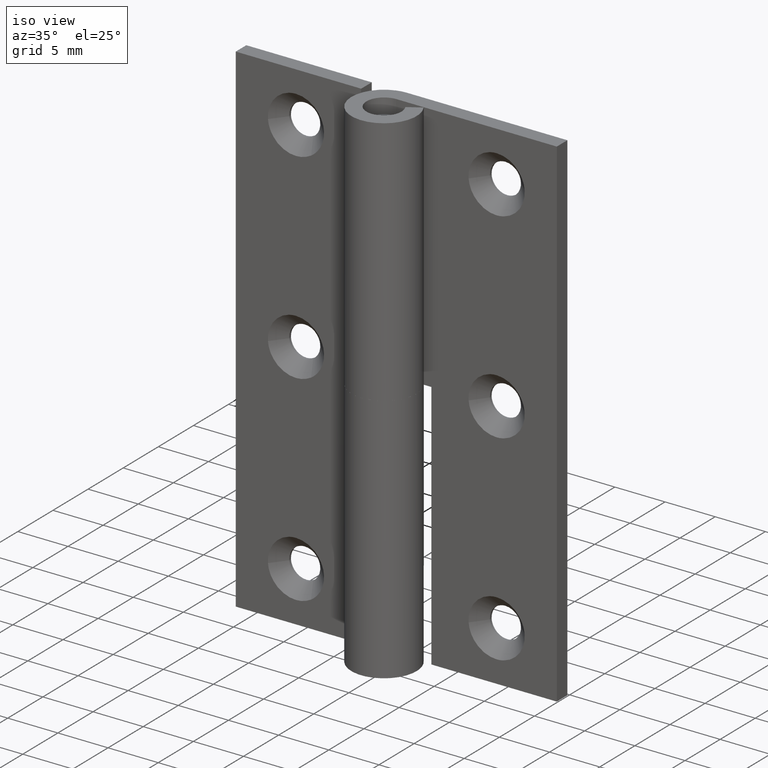
[diagram: clean part render]
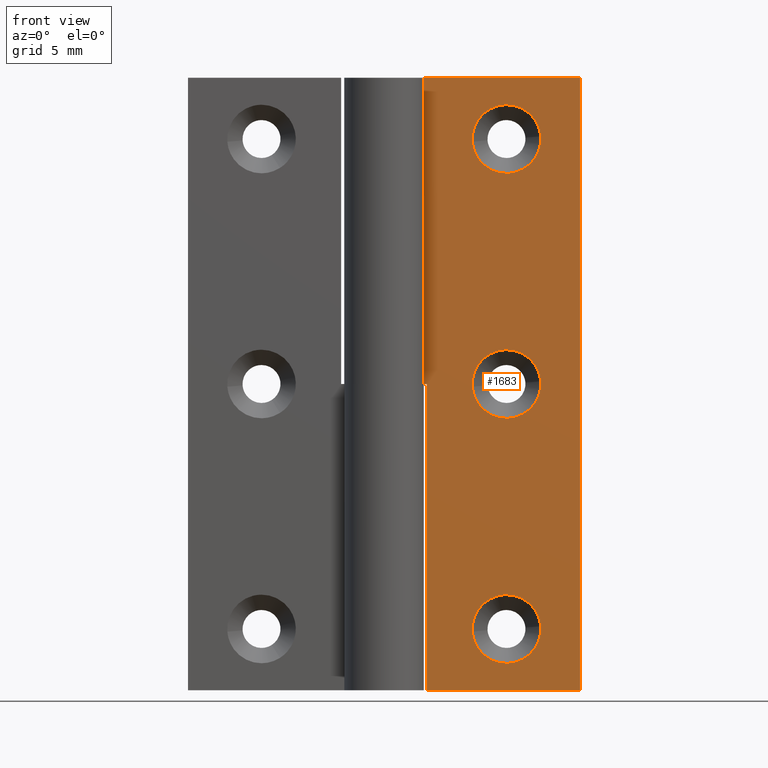
[diagram: tour spotlight — one face highlighted and labeled with its STEP entity id]
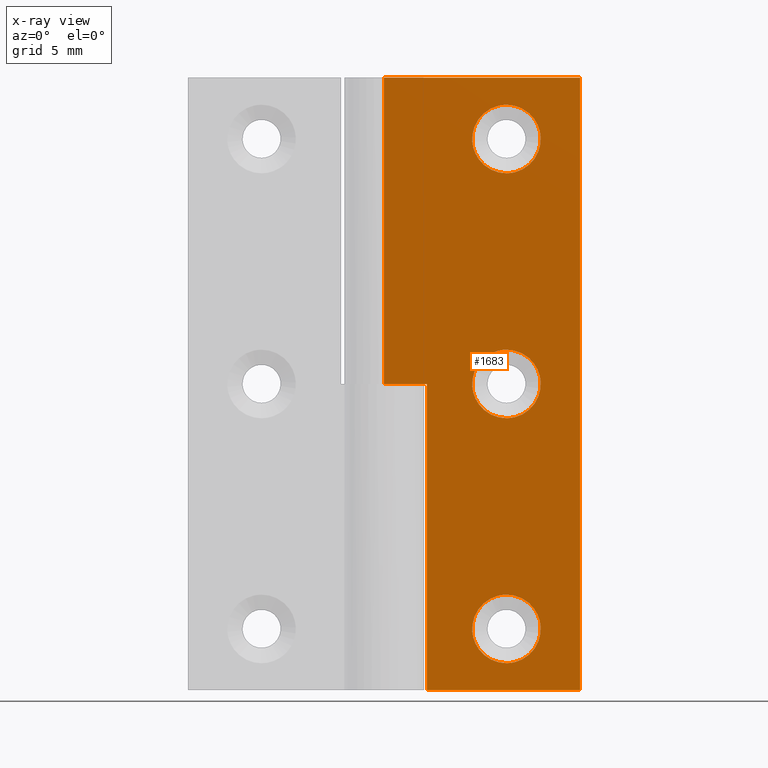
[diagram: x-ray of the same camera — body ghosted, this tour face saturated]
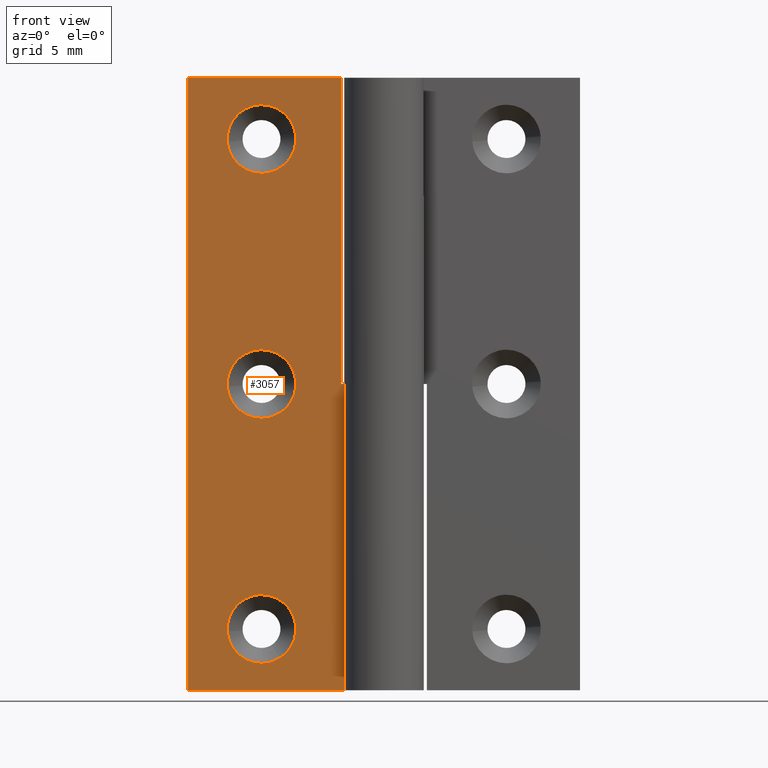
[diagram: tour spotlight — one face highlighted and labeled with its STEP entity id]
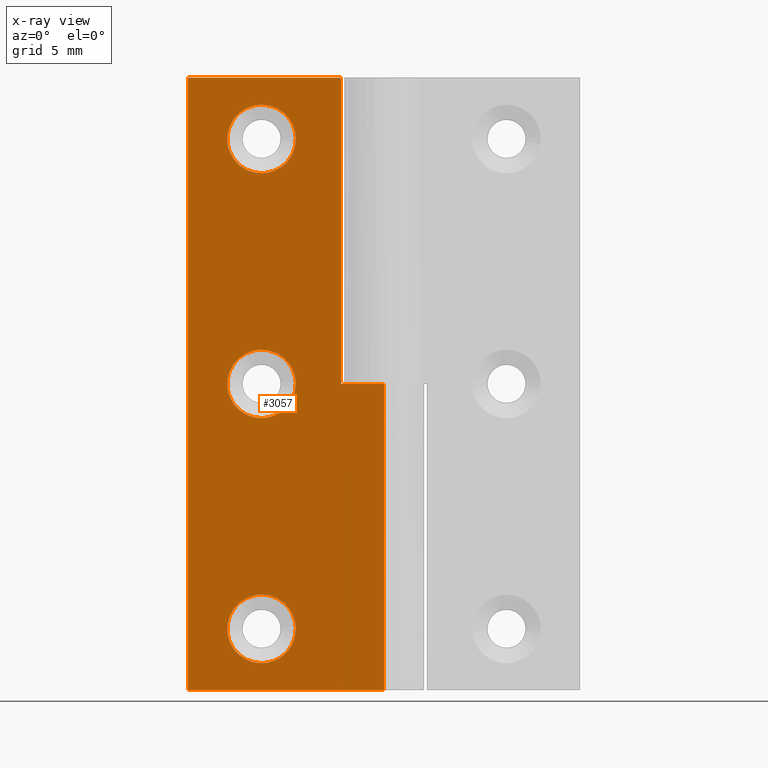
[diagram: x-ray of the same camera — body ghosted, this tour face saturated]
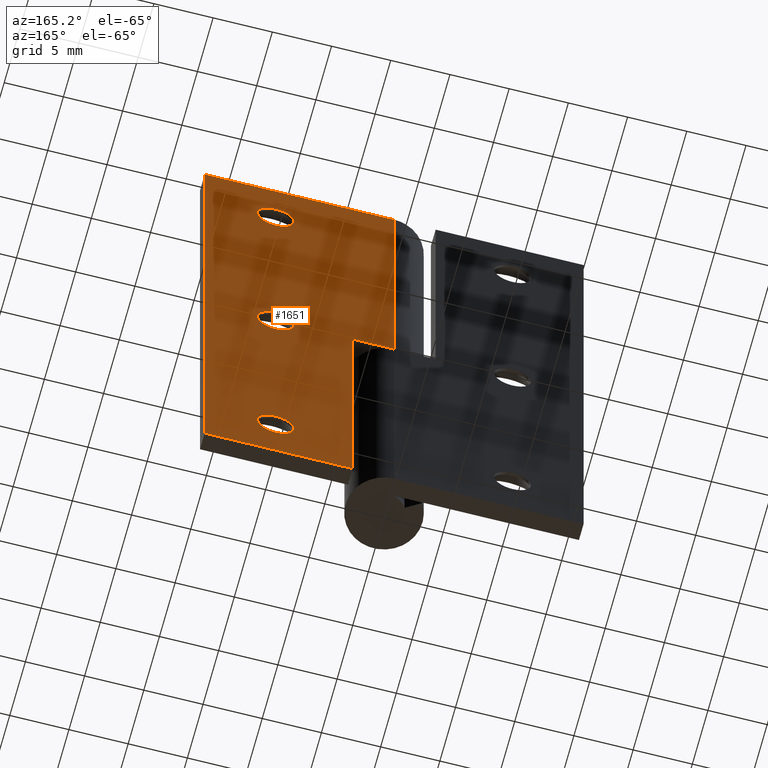
[diagram: tour spotlight — one face highlighted and labeled with its STEP entity id]
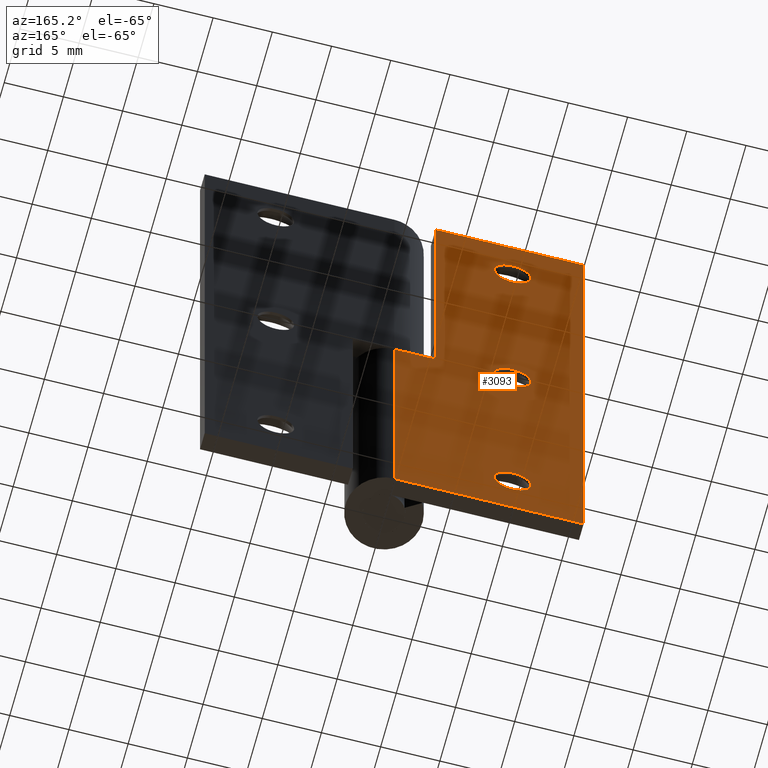
[diagram: tour spotlight — one face highlighted and labeled with its STEP entity id]
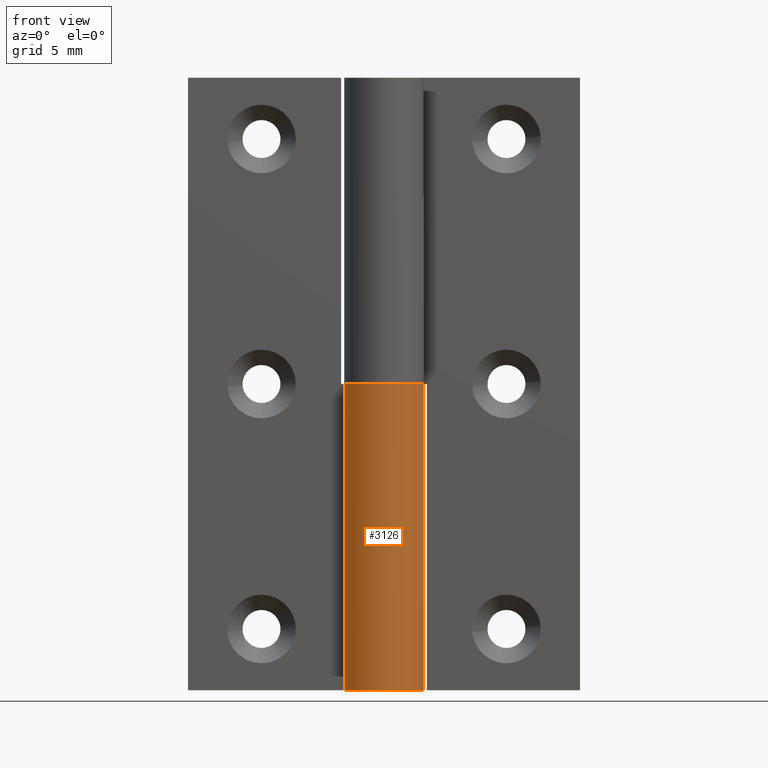
[diagram: tour spotlight — one face highlighted and labeled with its STEP entity id]
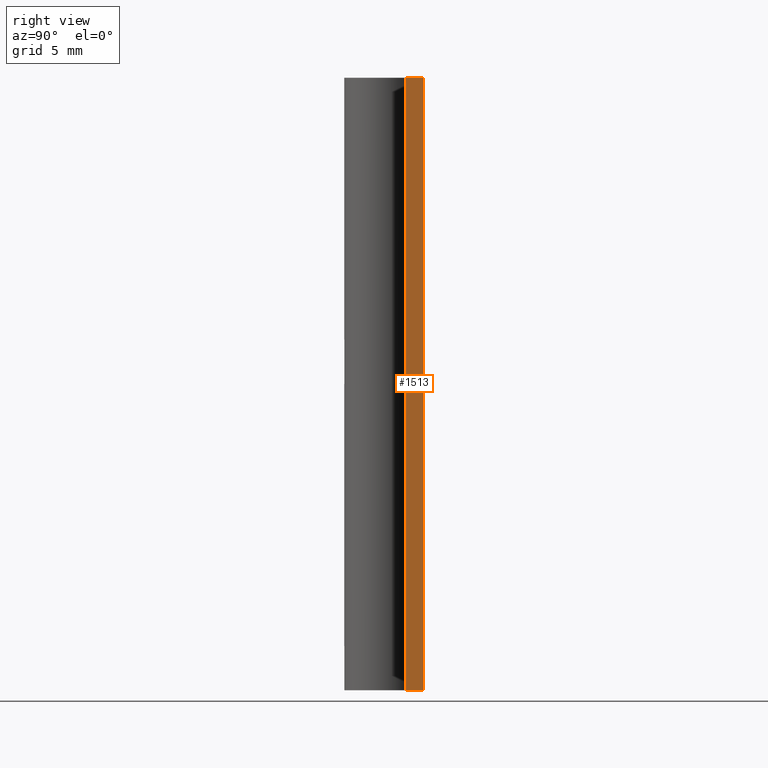
[diagram: tour spotlight — one face highlighted and labeled with its STEP entity id]
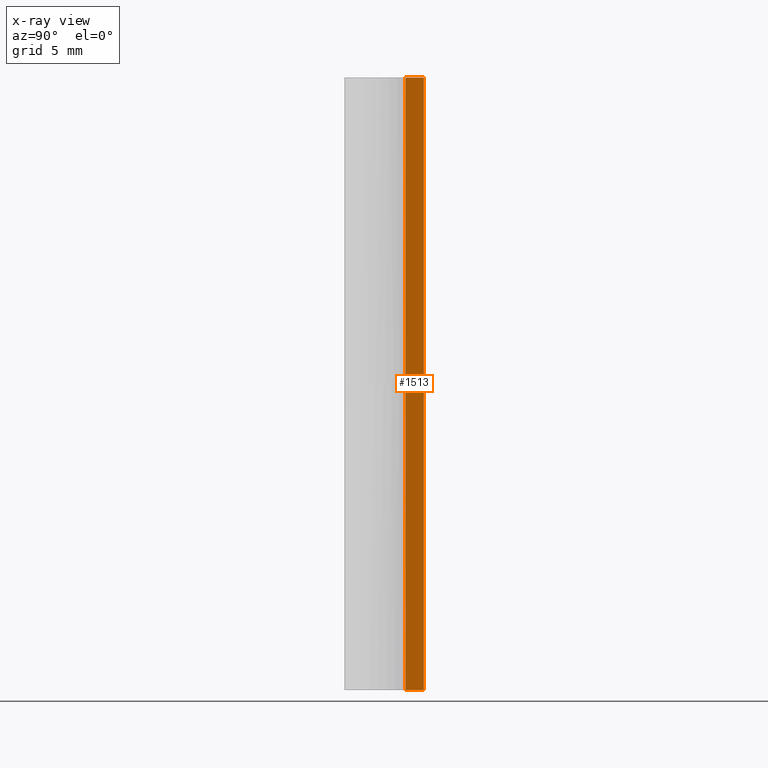
[diagram: x-ray of the same camera — body ghosted, this tour face saturated]
A machine part: a face-by-face anatomy tour. The part has 48 B-rep faces; the first image is the clean iso view, then the 6 largest visible faces are spotlighted one at a time (largest first), each with its STEP entity span.

Face 1 — front view, entity #1683. An x-ray twin of the same camera follows (body ghosted, this face saturated) — the face is partly hidden behind the body. In plain terms, the highlighted face is a freeform B-spline surface patch.
Definition (entity closure, byte-faithful):
#538=CARTESIAN_POINT('',(12.791368534462871,1.749999999974804,45.219685468230573));
#539=VERTEX_POINT('',#538);
#545=CARTESIAN_POINT('',(10.0,1.750000000000000,47.799999999999997));
#546=VERTEX_POINT('',#545);
#547=CARTESIAN_POINT('',(10.0,1.750000000000000,47.799999999999997));
#548=CARTESIAN_POINT('',(12.588293376288354,1.750000000000000,47.799999999999997));
#549=CARTESIAN_POINT('',(12.791368534462876,1.749999999974804,45.219685468230573));
#557=(BOUNDED_CURVE()B_SPLINE_CURVE(2,(#547,#548,#549),.UNSPECIFIED.,.F.,.U.)B_SPLINE_CURVE_WITH_KNOTS((3,3),(0.0,0.236331300609352),.UNSPECIFIED.)CURVE()GEOMETRIC_REPRESENTATION_ITEM()RATIONAL_B_SPLINE_CURVE((1.0,0.723120658632629,0.969723356122951))REPRESENTATION_ITEM(''));
#558=EDGE_CURVE('',#546,#539,#557,.T.);
#560=CARTESIAN_POINT('',(7.208631465537128,1.749999999974804,44.780314531769420));
#561=VERTEX_POINT('',#560);
#562=CARTESIAN_POINT('',(7.208631465537128,1.749999999974804,44.780314531769420));
#563=CARTESIAN_POINT('',(7.200000000000000,1.750000000000000,44.889987700187000));
#564=CARTESIAN_POINT('',(7.200000000000000,1.750000000000000,45.0));
#565=CARTESIAN_POINT('',(7.200000000000000,1.750000000000000,47.799999999999997));
#566=CARTESIAN_POINT('',(10.0,1.750000000000000,47.799999999999997));
#574=(BOUNDED_CURVE()B_SPLINE_CURVE(2,(#562,#563,#564,#565,#566),.UNSPECIFIED.,.F.,.U.)B_SPLINE_CURVE_WITH_KNOTS((3,2,3),(0.736331300609351,0.750000000000000,1.0),.UNSPECIFIED.)CURVE()GEOMETRIC_REPRESENTATION_ITEM()RATIONAL_B_SPLINE_CURVE((0.969723356122949,0.983986122553918,1.0,0.707106781186547,1.0))REPRESENTATION_ITEM(''));
#575=EDGE_CURVE('',#561,#546,#574,.T.);
#612=CARTESIAN_POINT('',(10.0,1.750000000000000,42.200000000000003));
#613=VERTEX_POINT('',#612);
#614=CARTESIAN_POINT('',(10.0,1.750000000000000,42.200000000000003));
#615=CARTESIAN_POINT('',(7.411706623711657,1.750000000000000,42.200000000000003));
#616=CARTESIAN_POINT('',(7.208631465537128,1.749999999974804,44.780314531769420));
#624=(BOUNDED_CURVE()B_SPLINE_CURVE(2,(#614,#615,#616),.UNSPECIFIED.,.F.,.U.)B_SPLINE_CURVE_WITH_KNOTS((3,3),(0.500000000000000,0.736331300609351),.UNSPECIFIED.)CURVE()GEOMETRIC_REPRESENTATION_ITEM()RATIONAL_B_SPLINE_CURVE((1.0,0.723120658632630,0.969723356122949))REPRESENTATION_ITEM(''));
#625=EDGE_CURVE('',#613,#561,#624,.T.);
#627=CARTESIAN_POINT('',(12.791368534462874,1.749999999974804,45.219685468230580));
#628=CARTESIAN_POINT('',(12.799999999999999,1.750000000000000,45.110012299813000));
#629=CARTESIAN_POINT('',(12.800000000000001,1.750000000000000,45.0));
#630=CARTESIAN_POINT('',(12.800000000000001,1.750000000000000,42.199999999999996));
#631=CARTESIAN_POINT('',(10.0,1.750000000000000,42.200000000000003));
#639=(BOUNDED_CURVE()B_SPLINE_CURVE(2,(#627,#628,#629,#630,#631),.UNSPECIFIED.,.F.,.U.)B_SPLINE_CURVE_WITH_KNOTS((3,2,3),(0.236331300609352,0.250000000000000,0.500000000000000),.UNSPECIFIED.)CURVE()GEOMETRIC_REPRESENTATION_ITEM()RATIONAL_B_SPLINE_CURVE((0.969723356122951,0.983986122553919,1.0,0.707106781186547,1.0))REPRESENTATION_ITEM(''));
#640=EDGE_CURVE('',#539,#613,#639,.T.);
#866=CARTESIAN_POINT('',(12.791368534462871,1.749999999974803,25.219685468230580));
#867=VERTEX_POINT('',#866);
#873=CARTESIAN_POINT('',(10.0,1.750000000000000,27.800000000000001));
#874=VERTEX_POINT('',#873);
#875=CARTESIAN_POINT('',(10.0,1.750000000000000,27.800000000000001));
#876=CARTESIAN_POINT('',(12.588293376288350,1.750000000000000,27.800000000000004));
#877=CARTESIAN_POINT('',(12.791368534462872,1.749999999974804,25.219685468230576));
#885=(BOUNDED_CURVE()B_SPLINE_CURVE(2,(#875,#876,#877),.UNSPECIFIED.,.F.,.U.)B_SPLINE_CURVE_WITH_KNOTS((3,3),(0.0,0.236331300609352),.UNSPECIFIED.)CURVE()GEOMETRIC_REPRESENTATION_ITEM()RATIONAL_B_SPLINE_CURVE((1.0,0.723120658632629,0.969723356122950))REPRESENTATION_ITEM(''));
#886=EDGE_CURVE('',#874,#867,#885,.T.);
#888=CARTESIAN_POINT('',(7.208631465537128,1.749999999974804,24.780314531769420));
#889=VERTEX_POINT('',#888);
#890=CARTESIAN_POINT('',(7.208631465537128,1.749999999974804,24.780314531769417));
#891=CARTESIAN_POINT('',(7.200000000000000,1.750000000000000,24.889987700186996));
#892=CARTESIAN_POINT('',(7.200000000000000,1.750000000000000,25.0));
#893=CARTESIAN_POINT('',(7.200000000000000,1.750000000000000,27.800000000000004));
#894=CARTESIAN_POINT('',(10.0,1.750000000000000,27.800000000000001));
#902=(BOUNDED_CURVE()B_SPLINE_CURVE(2,(#890,#891,#892,#893,#894),.UNSPECIFIED.,.F.,.U.)B_SPLINE_CURVE_WITH_KNOTS((3,2,3),(0.736331300609351,0.750000000000000,1.0),.UNSPECIFIED.)CURVE()GEOMETRIC_REPRESENTATION_ITEM()RATIONAL_B_SPLINE_CURVE((0.969723356122949,0.983986122553918,1.0,0.707106781186547,1.0))REPRESENTATION_ITEM(''));
#903=EDGE_CURVE('',#889,#874,#902,.T.);
#940=CARTESIAN_POINT('',(10.0,1.750000000000000,22.199999999999999));
#941=VERTEX_POINT('',#940);
#942=CARTESIAN_POINT('',(10.0,1.750000000000000,22.199999999999999));
#943=CARTESIAN_POINT('',(7.411706623711657,1.750000000000000,22.200000000000006));
#944=CARTESIAN_POINT('',(7.208631465537128,1.749999999974804,24.780314531769417));
#952=(BOUNDED_CURVE()B_SPLINE_CURVE(2,(#942,#943,#944),.UNSPECIFIED.,.F.,.U.)B_SPLINE_CURVE_WITH_KNOTS((3,3),(0.500000000000000,0.736331300609351),.UNSPECIFIED.)CURVE()GEOMETRIC_REPRESENTATION_ITEM()RATIONAL_B_SPLINE_CURVE((1.0,0.723120658632630,0.969723356122949))REPRESENTATION_ITEM(''));
#953=EDGE_CURVE('',#941,#889,#952,.T.);
#955=CARTESIAN_POINT('',(12.791368534462876,1.749999999974804,25.219685468230580));
#956=CARTESIAN_POINT('',(12.799999999999997,1.750000000000000,25.110012299813000));
#957=CARTESIAN_POINT('',(12.800000000000001,1.750000000000000,25.0));
#958=CARTESIAN_POINT('',(12.800000000000001,1.750000000000000,22.200000000000010));
#959=CARTESIAN_POINT('',(10.0,1.750000000000000,22.199999999999999));
#967=(BOUNDED_CURVE()B_SPLINE_CURVE(2,(#955,#956,#957,#958,#959),.UNSPECIFIED.,.F.,.U.)B_SPLINE_CURVE_WITH_KNOTS((3,2,3),(0.236331300609352,0.250000000000000,0.500000000000000),.UNSPECIFIED.)CURVE()GEOMETRIC_REPRESENTATION_ITEM()RATIONAL_B_SPLINE_CURVE((0.969723356122950,0.983986122553918,1.0,0.707106781186547,1.0))REPRESENTATION_ITEM(''));
#968=EDGE_CURVE('',#867,#941,#967,.T.);
#1194=CARTESIAN_POINT('',(12.791368534462871,1.749999999974803,5.219685468230582));
#1195=VERTEX_POINT('',#1194);
#1201=CARTESIAN_POINT('',(10.0,1.750000000000000,7.800000000000000));
#1202=VERTEX_POINT('',#1201);
#1203=CARTESIAN_POINT('',(10.0,1.750000000000000,7.800000000000000));
#1204=CARTESIAN_POINT('',(12.588293376288346,1.749999999999999,7.800000000000000));
#1205=CARTESIAN_POINT('',(12.791368534462872,1.749999999974804,5.219685468230583));
#1213=(BOUNDED_CURVE()B_SPLINE_CURVE(2,(#1203,#1204,#1205),.UNSPECIFIED.,.F.,.U.)B_SPLINE_CURVE_WITH_KNOTS((3,3),(0.0,0.236331300609352),.UNSPECIFIED.)CURVE()GEOMETRIC_REPRESENTATION_ITEM()RATIONAL_B_SPLINE_CURVE((1.0,0.723120658632629,0.969723356122949))REPRESENTATION_ITEM(''));
#1214=EDGE_CURVE('',#1202,#1195,#1213,.T.);
#1216=CARTESIAN_POINT('',(7.208631465537128,1.749999999974804,4.780314531769417));
#1217=VERTEX_POINT('',#1216);
#1218=CARTESIAN_POINT('',(7.208631465537129,1.749999999974804,4.780314531769417));
#1219=CARTESIAN_POINT('',(7.200000000000000,1.750000000000000,4.889987700187001));
#1220=CARTESIAN_POINT('',(7.200000000000000,1.750000000000000,5.0));
#1221=CARTESIAN_POINT('',(7.200000000000000,1.750000000000000,7.799999999999999));
#1222=CARTESIAN_POINT('',(10.0,1.750000000000000,7.800000000000000));
#1230=(BOUNDED_CURVE()B_SPLINE_CURVE(2,(#1218,#1219,#1220,#1221,#1222),.UNSPECIFIED.,.F.,.U.)B_SPLINE_CURVE_WITH_KNOTS((3,2,3),(0.736331300609352,0.750000000000000,1.0),.UNSPECIFIED.)CURVE()GEOMETRIC_REPRESENTATION_ITEM()RATIONAL_B_SPLINE_CURVE((0.969723356122950,0.983986122553918,1.0,0.707106781186547,1.0))REPRESENTATION_ITEM(''));
#1231=EDGE_CURVE('',#1217,#1202,#1230,.T.);
#1268=CARTESIAN_POINT('',(10.0,1.750000000000000,2.200000000000000));
#1269=VERTEX_POINT('',#1268);
#1270=CARTESIAN_POINT('',(10.0,1.750000000000000,2.200000000000000));
#1271=CARTESIAN_POINT('',(7.411706623711657,1.750000000000000,2.200000000000000));
#1272=CARTESIAN_POINT('',(7.208631465537128,1.749999999974804,4.780314531769417));
#1280=(BOUNDED_CURVE()B_SPLINE_CURVE(2,(#1270,#1271,#1272),.UNSPECIFIED.,.F.,.U.)B_SPLINE_CURVE_WITH_KNOTS((3,3),(0.500000000000000,0.736331300609351),.UNSPECIFIED.)CURVE()GEOMETRIC_REPRESENTATION_ITEM()RATIONAL_B_SPLINE_CURVE((1.0,0.723120658632630,0.969723356122949))REPRESENTATION_ITEM(''));
#1281=EDGE_CURVE('',#1269,#1217,#1280,.T.);
#1283=CARTESIAN_POINT('',(12.791368534462869,1.749999999974803,5.219685468230582));
#1284=CARTESIAN_POINT('',(12.799999999999999,1.750000000000000,5.110012299812999));
#1285=CARTESIAN_POINT('',(12.800000000000001,1.750000000000000,5.0));
#1286=CARTESIAN_POINT('',(12.800000000000001,1.750000000000000,2.200000000000001));
#1287=CARTESIAN_POINT('',(10.0,1.750000000000000,2.200000000000000));
#1295=(BOUNDED_CURVE()B_SPLINE_CURVE(2,(#1283,#1284,#1285,#1286,#1287),.UNSPECIFIED.,.F.,.U.)B_SPLINE_CURVE_WITH_KNOTS((3,2,3),(0.236331300609352,0.250000000000000,0.500000000000000),.UNSPECIFIED.)CURVE()GEOMETRIC_REPRESENTATION_ITEM()RATIONAL_B_SPLINE_CURVE((0.969723356122950,0.983986122553918,1.0,0.707106781186547,1.0))REPRESENTATION_ITEM(''));
#1296=EDGE_CURVE('',#1195,#1269,#1295,.T.);
#1307=CARTESIAN_POINT('',(3.500000000000000,1.750000000000030,0.0));
#1308=VERTEX_POINT('',#1307);
#1309=CARTESIAN_POINT('',(3.500000000000000,1.750000000000030,25.0));
#1310=VERTEX_POINT('',#1309);
#1311=CARTESIAN_POINT('',(3.500000000000000,1.750000000000030,0.0));
#1312=CARTESIAN_POINT('',(3.500000000000000,1.750000000000030,25.0));
#1313=QUASI_UNIFORM_CURVE('',1,(#1311,#1312),.UNSPECIFIED.,.F.,.U.);
#1314=EDGE_CURVE('',#1308,#1310,#1313,.T.);
#1343=CARTESIAN_POINT('',(0.0,1.750000000000000,25.0));
#1344=VERTEX_POINT('',#1343);
#1345=CARTESIAN_POINT('',(3.500000000000000,1.750000000000030,25.0));
#1346=CARTESIAN_POINT('',(0.0,1.750000000000000,25.0));
#1347=QUASI_UNIFORM_CURVE('',1,(#1345,#1346),.UNSPECIFIED.,.F.,.U.);
#1348=EDGE_CURVE('',#1310,#1344,#1347,.T.);
#1415=CARTESIAN_POINT('',(0.0,1.750000000000000,50.0));
#1416=VERTEX_POINT('',#1415);
#1436=CARTESIAN_POINT('',(16.0,1.750000000000000,50.0));
#1437=VERTEX_POINT('',#1436);
#1438=CARTESIAN_POINT('',(0.0,1.750000000000000,50.0));
#1439=CARTESIAN_POINT('',(16.0,1.750000000000000,50.0));
#1440=QUASI_UNIFORM_CURVE('',1,(#1438,#1439),.UNSPECIFIED.,.F.,.U.);
#1441=EDGE_CURVE('',#1416,#1437,#1440,.T.);
#1491=CARTESIAN_POINT('',(16.0,1.750000000000000,0.0));
#1492=VERTEX_POINT('',#1491);
#1506=CARTESIAN_POINT('',(16.0,1.750000000000000,50.0));
#1507=CARTESIAN_POINT('',(16.0,1.750000000000000,0.0));
#1508=QUASI_UNIFORM_CURVE('',1,(#1506,#1507),.UNSPECIFIED.,.F.,.U.);
#1509=EDGE_CURVE('',#1437,#1492,#1508,.T.);
#1519=CARTESIAN_POINT('',(3.500000000000000,1.750000000000030,0.0));
#1520=CARTESIAN_POINT('',(16.0,1.750000000000000,0.0));
#1521=QUASI_UNIFORM_CURVE('',1,(#1519,#1520),.UNSPECIFIED.,.F.,.U.);
#1522=EDGE_CURVE('',#1308,#1492,#1521,.T.);
#1610=CARTESIAN_POINT('',(0.0,1.750000000000000,50.0));
#1611=CARTESIAN_POINT('',(0.0,1.750000000000000,25.0));
#1612=QUASI_UNIFORM_CURVE('',1,(#1610,#1611),.UNSPECIFIED.,.F.,.U.);
#1613=EDGE_CURVE('',#1416,#1344,#1612,.T.);
#1652=CARTESIAN_POINT('',(-0.799199968988895,1.750000000000000,-2.497499903090299));
#1653=CARTESIAN_POINT('',(-0.799199968988895,1.750000000000000,52.497501244194808));
#1654=CARTESIAN_POINT('',(16.799200398142339,1.750000000000000,-2.497499903090299));
#1655=CARTESIAN_POINT('',(16.799200398142339,1.750000000000000,52.497501244194808));
#1656=B_SPLINE_SURFACE_WITH_KNOTS('',1,1,((#1652,#1654),(#1653,#1655)),.UNSPECIFIED.,.F.,.F.,.U.,(2,2),(2,2),(0.0,54.995001147285109),(0.0,17.598400367131230),.UNSPECIFIED.);
#1657=ORIENTED_EDGE('',*,*,#1314,.F.);
#1658=ORIENTED_EDGE('',*,*,#1522,.T.);
#1659=ORIENTED_EDGE('',*,*,#1509,.F.);
#1660=ORIENTED_EDGE('',*,*,#1441,.F.);
#1661=ORIENTED_EDGE('',*,*,#1613,.T.);
#1662=ORIENTED_EDGE('',*,*,#1348,.F.);
#1663=EDGE_LOOP('',(#1657,#1658,#1659,#1660,#1661,#1662));
#1664=FACE_OUTER_BOUND('',#1663,.T.);
#1665=ORIENTED_EDGE('',*,*,#1281,.T.);
#1666=ORIENTED_EDGE('',*,*,#1231,.T.);
#1667=ORIENTED_EDGE('',*,*,#1214,.T.);
#1668=ORIENTED_EDGE('',*,*,#1296,.T.);
#1669=EDGE_LOOP('',(#1665,#1666,#1667,#1668));
#1670=FACE_BOUND('',#1669,.T.);
#1671=ORIENTED_EDGE('',*,*,#953,.T.);
#1672=ORIENTED_EDGE('',*,*,#903,.T.);
#1673=ORIENTED_EDGE('',*,*,#886,.T.);
#1674=ORIENTED_EDGE('',*,*,#968,.T.);
#1675=EDGE_LOOP('',(#1671,#1672,#1673,#1674));
#1676=FACE_BOUND('',#1675,.T.);
#1677=ORIENTED_EDGE('',*,*,#625,.T.);
#1678=ORIENTED_EDGE('',*,*,#575,.T.);
#1679=ORIENTED_EDGE('',*,*,#558,.T.);
#1680=ORIENTED_EDGE('',*,*,#640,.T.);
#1681=EDGE_LOOP('',(#1677,#1678,#1679,#1680));
#1682=FACE_BOUND('',#1681,.T.);
#1683=ADVANCED_FACE('',(#1664,#1670,#1676,#1682),#1656,.F.);

Face 2 — front view, entity #3057. An x-ray twin of the same camera follows (body ghosted, this face saturated) — the face is partly hidden behind the body. In plain terms, the highlighted face is a freeform B-spline surface patch.
Definition (entity closure, byte-faithful):
#1766=CARTESIAN_POINT('',(-8.494017778289672,1.749999999996397,22.639487863214299));
#1767=VERTEX_POINT('',#1766);
#1773=CARTESIAN_POINT('',(-10.0,1.750000000000000,27.800000000000001));
#1774=VERTEX_POINT('',#1773);
#1775=CARTESIAN_POINT('',(-10.0,1.750000000000000,27.800000000000001));
#1776=CARTESIAN_POINT('',(-7.200000000000000,1.750000000000000,27.800000000000004));
#1777=CARTESIAN_POINT('',(-7.200000000000000,1.750000000000000,25.0));
#1778=CARTESIAN_POINT('',(-7.200000000000000,1.750000000000000,23.465057763249849));
#1779=CARTESIAN_POINT('',(-8.494017778289672,1.749999999996397,22.639487863214292));
#1787=(BOUNDED_CURVE()B_SPLINE_CURVE(2,(#1775,#1776,#1777,#1778,#1779),.UNSPECIFIED.,.F.,.U.)B_SPLINE_CURVE_WITH_KNOTS((3,2,3),(0.0,0.250000000000000,0.407950112619935),.UNSPECIFIED.)CURVE()GEOMETRIC_REPRESENTATION_ITEM()RATIONAL_B_SPLINE_CURVE((1.0,0.707106781186547,1.0,0.814949932411200,0.863729296950220))REPRESENTATION_ITEM(''));
#1788=EDGE_CURVE('',#1774,#1767,#1787,.T.);
#1790=CARTESIAN_POINT('',(-12.791368534462871,1.749999999974804,24.780314531769420));
#1791=VERTEX_POINT('',#1790);
#1792=CARTESIAN_POINT('',(-12.791368534462872,1.749999999974804,24.780314531769417));
#1793=CARTESIAN_POINT('',(-12.800000000000004,1.750000000000000,24.889987700187003));
#1794=CARTESIAN_POINT('',(-12.800000000000001,1.750000000000000,25.0));
#1795=CARTESIAN_POINT('',(-12.800000000000001,1.750000000000000,27.800000000000004));
#1796=CARTESIAN_POINT('',(-10.0,1.750000000000000,27.800000000000001));
#1804=(BOUNDED_CURVE()B_SPLINE_CURVE(2,(#1792,#1793,#1794,#1795,#1796),.UNSPECIFIED.,.F.,.U.)B_SPLINE_CURVE_WITH_KNOTS((3,2,3),(0.736331300609352,0.750000000000000,1.0),.UNSPECIFIED.)CURVE()GEOMETRIC_REPRESENTATION_ITEM()RATIONAL_B_SPLINE_CURVE((0.969723356122950,0.983986122553918,1.0,0.707106781186547,1.0))REPRESENTATION_ITEM(''));
#1805=EDGE_CURVE('',#1791,#1774,#1804,.T.);
#1909=CARTESIAN_POINT('',(-10.0,1.750000000000000,22.199999999999999));
#1910=VERTEX_POINT('',#1909);
#1911=CARTESIAN_POINT('',(-10.0,1.750000000000000,22.199999999999999));
#1912=CARTESIAN_POINT('',(-12.588293376288345,1.750000000000000,22.200000000000006));
#1913=CARTESIAN_POINT('',(-12.791368534462876,1.749999999974803,24.780314531769417));
#1921=(BOUNDED_CURVE()B_SPLINE_CURVE(2,(#1911,#1912,#1913),.UNSPECIFIED.,.F.,.U.)B_SPLINE_CURVE_WITH_KNOTS((3,3),(0.500000000000000,0.736331300609351),.UNSPECIFIED.)CURVE()GEOMETRIC_REPRESENTATION_ITEM()RATIONAL_B_SPLINE_CURVE((1.0,0.723120658632630,0.969723356122949))REPRESENTATION_ITEM(''));
#1922=EDGE_CURVE('',#1910,#1791,#1921,.T.);
#1924=CARTESIAN_POINT('',(-8.494017778289672,1.749999999996398,22.639487863214299));
#1925=CARTESIAN_POINT('',(-9.182881444862087,1.750000000000000,22.199999999999999));
#1926=CARTESIAN_POINT('',(-10.0,1.750000000000000,22.199999999999999));
#1934=(BOUNDED_CURVE()B_SPLINE_CURVE(2,(#1924,#1925,#1926),.UNSPECIFIED.,.F.,.U.)B_SPLINE_CURVE_WITH_KNOTS((3,3),(0.407950112619935,0.500000000000000),.UNSPECIFIED.)CURVE()GEOMETRIC_REPRESENTATION_ITEM()RATIONAL_B_SPLINE_CURVE((0.863729296950220,0.892156848775347,1.0))REPRESENTATION_ITEM(''));
#1935=EDGE_CURVE('',#1767,#1910,#1934,.T.);
#2110=CARTESIAN_POINT('',(-8.494017778289670,1.749999999996397,42.639487863214299));
#2111=VERTEX_POINT('',#2110);
#2117=CARTESIAN_POINT('',(-10.0,1.750000000000000,47.799999999999997));
#2118=VERTEX_POINT('',#2117);
#2119=CARTESIAN_POINT('',(-10.0,1.750000000000000,47.799999999999997));
#2120=CARTESIAN_POINT('',(-7.200000000000000,1.750000000000000,47.799999999999997));
#2121=CARTESIAN_POINT('',(-7.200000000000000,1.750000000000000,45.0));
#2122=CARTESIAN_POINT('',(-7.200000000000000,1.750000000000000,43.465057763249852));
#2123=CARTESIAN_POINT('',(-8.494017778289670,1.749999999996397,42.639487863214299));
#2131=(BOUNDED_CURVE()B_SPLINE_CURVE(2,(#2119,#2120,#2121,#2122,#2123),.UNSPECIFIED.,.F.,.U.)B_SPLINE_CURVE_WITH_KNOTS((3,2,3),(0.0,0.250000000000000,0.407950112619935),.UNSPECIFIED.)CURVE()GEOMETRIC_REPRESENTATION_ITEM()RATIONAL_B_SPLINE_CURVE((1.0,0.707106781186547,1.0,0.814949932411200,0.863729296950220))REPRESENTATION_ITEM(''));
#2132=EDGE_CURVE('',#2118,#2111,#2131,.T.);
#2134=CARTESIAN_POINT('',(-12.791368534462871,1.749999999974803,44.780314531769420));
#2135=VERTEX_POINT('',#2134);
#2136=CARTESIAN_POINT('',(-12.791368534462872,1.749999999974804,44.780314531769420));
#2137=CARTESIAN_POINT('',(-12.800000000000004,1.750000000000000,44.889987700187007));
#2138=CARTESIAN_POINT('',(-12.800000000000001,1.750000000000000,45.0));
#2139=CARTESIAN_POINT('',(-12.800000000000001,1.750000000000000,47.799999999999997));
#2140=CARTESIAN_POINT('',(-10.0,1.750000000000000,47.799999999999997));
#2148=(BOUNDED_CURVE()B_SPLINE_CURVE(2,(#2136,#2137,#2138,#2139,#2140),.UNSPECIFIED.,.F.,.U.)B_SPLINE_CURVE_WITH_KNOTS((3,2,3),(0.736331300609352,0.750000000000000,1.0),.UNSPECIFIED.)CURVE()GEOMETRIC_REPRESENTATION_ITEM()RATIONAL_B_SPLINE_CURVE((0.969723356122950,0.983986122553918,1.0,0.707106781186547,1.0))REPRESENTATION_ITEM(''));
#2149=EDGE_CURVE('',#2135,#2118,#2148,.T.);
#2253=CARTESIAN_POINT('',(-10.0,1.750000000000000,42.200000000000003));
#2254=VERTEX_POINT('',#2253);
#2255=CARTESIAN_POINT('',(-10.0,1.750000000000000,42.200000000000003));
#2256=CARTESIAN_POINT('',(-12.588293376288345,1.750000000000000,42.200000000000003));
#2257=CARTESIAN_POINT('',(-12.791368534462876,1.749999999974803,44.780314531769420));
#2265=(BOUNDED_CURVE()B_SPLINE_CURVE(2,(#2255,#2256,#2257),.UNSPECIFIED.,.F.,.U.)B_SPLINE_CURVE_WITH_KNOTS((3,3),(0.500000000000000,0.736331300609351),.UNSPECIFIED.)CURVE()GEOMETRIC_REPRESENTATION_ITEM()RATIONAL_B_SPLINE_CURVE((1.0,0.723120658632630,0.969723356122949))REPRESENTATION_ITEM(''));
#2266=EDGE_CURVE('',#2254,#2135,#2265,.T.);
#2268=CARTESIAN_POINT('',(-8.494017778289670,1.749999999996396,42.639487863214285));
#2269=CARTESIAN_POINT('',(-9.182881444862087,1.749999999999999,42.200000000000010));
#2270=CARTESIAN_POINT('',(-10.0,1.750000000000000,42.200000000000003));
#2278=(BOUNDED_CURVE()B_SPLINE_CURVE(2,(#2268,#2269,#2270),.UNSPECIFIED.,.F.,.U.)B_SPLINE_CURVE_WITH_KNOTS((3,3),(0.407950112619935,0.500000000000000),.UNSPECIFIED.)CURVE()GEOMETRIC_REPRESENTATION_ITEM()RATIONAL_B_SPLINE_CURVE((0.863729296950220,0.892156848775347,1.0))REPRESENTATION_ITEM(''));
#2279=EDGE_CURVE('',#2111,#2254,#2278,.T.);
#2454=CARTESIAN_POINT('',(-8.494017778289672,1.749999999996397,2.639487863214299));
#2455=VERTEX_POINT('',#2454);
#2461=CARTESIAN_POINT('',(-10.0,1.750000000000000,7.800000000000000));
#2462=VERTEX_POINT('',#2461);
#2463=CARTESIAN_POINT('',(-10.0,1.750000000000000,7.800000000000000));
#2464=CARTESIAN_POINT('',(-7.200000000000000,1.750000000000000,7.799999999999999));
#2465=CARTESIAN_POINT('',(-7.200000000000000,1.750000000000000,5.0));
#2466=CARTESIAN_POINT('',(-7.200000000000000,1.750000000000000,3.465057763249853));
#2467=CARTESIAN_POINT('',(-8.494017778289672,1.749999999996397,2.639487863214299));
#2475=(BOUNDED_CURVE()B_SPLINE_CURVE(2,(#2463,#2464,#2465,#2466,#2467),.UNSPECIFIED.,.F.,.U.)B_SPLINE_CURVE_WITH_KNOTS((3,2,3),(0.0,0.250000000000000,0.407950112619935),.UNSPECIFIED.)CURVE()GEOMETRIC_REPRESENTATION_ITEM()RATIONAL_B_SPLINE_CURVE((1.0,0.707106781186547,1.0,0.814949932411200,0.863729296950220))REPRESENTATION_ITEM(''));
#2476=EDGE_CURVE('',#2462,#2455,#2475,.T.);
#2478=CARTESIAN_POINT('',(-12.791368534462871,1.749999999974803,4.780314531769419));
#2479=VERTEX_POINT('',#2478);
#2480=CARTESIAN_POINT('',(-12.791368534462876,1.749999999974804,4.780314531769419));
#2481=CARTESIAN_POINT('',(-12.800000000000006,1.750000000000000,4.889987700187003));
#2482=CARTESIAN_POINT('',(-12.800000000000001,1.750000000000000,5.0));
#2483=CARTESIAN_POINT('',(-12.800000000000001,1.750000000000000,7.799999999999999));
#2484=CARTESIAN_POINT('',(-10.0,1.750000000000000,7.800000000000000));
#2492=(BOUNDED_CURVE()B_SPLINE_CURVE(2,(#2480,#2481,#2482,#2483,#2484),.UNSPECIFIED.,.F.,.U.)B_SPLINE_CURVE_WITH_KNOTS((3,2,3),(0.736331300609352,0.750000000000000,1.0),.UNSPECIFIED.)CURVE()GEOMETRIC_REPRESENTATION_ITEM()RATIONAL_B_SPLINE_CURVE((0.969723356122950,0.983986122553918,1.0,0.707106781186547,1.0))REPRESENTATION_ITEM(''));
#2493=EDGE_CURVE('',#2479,#2462,#2492,.T.);
#2597=CARTESIAN_POINT('',(-10.0,1.750000000000000,2.200000000000000));
#2598=VERTEX_POINT('',#2597);
#2599=CARTESIAN_POINT('',(-10.0,1.750000000000000,2.200000000000000));
#2600=CARTESIAN_POINT('',(-12.588293376288345,1.750000000000000,2.200000000000000));
#2601=CARTESIAN_POINT('',(-12.791368534462876,1.749999999974803,4.780314531769419));
#2609=(BOUNDED_CURVE()B_SPLINE_CURVE(2,(#2599,#2600,#2601),.UNSPECIFIED.,.F.,.U.)B_SPLINE_CURVE_WITH_KNOTS((3,3),(0.500000000000000,0.736331300609351),.UNSPECIFIED.)CURVE()GEOMETRIC_REPRESENTATION_ITEM()RATIONAL_B_SPLINE_CURVE((1.0,0.723120658632630,0.969723356122949))REPRESENTATION_ITEM(''));
#2610=EDGE_CURVE('',#2598,#2479,#2609,.T.);
#2612=CARTESIAN_POINT('',(-8.494017778289672,1.749999999996398,2.639487863214299));
#2613=CARTESIAN_POINT('',(-9.182881444862087,1.750000000000000,2.200000000000000));
#2614=CARTESIAN_POINT('',(-10.0,1.750000000000000,2.200000000000000));
#2622=(BOUNDED_CURVE()B_SPLINE_CURVE(2,(#2612,#2613,#2614),.UNSPECIFIED.,.F.,.U.)B_SPLINE_CURVE_WITH_KNOTS((3,3),(0.407950112619935,0.500000000000000),.UNSPECIFIED.)CURVE()GEOMETRIC_REPRESENTATION_ITEM()RATIONAL_B_SPLINE_CURVE((0.863729296950220,0.892156848775347,1.0))REPRESENTATION_ITEM(''));
#2623=EDGE_CURVE('',#2455,#2598,#2622,.T.);
#2762=CARTESIAN_POINT('',(-3.500000000000000,1.750000000000030,25.0));
#2763=VERTEX_POINT('',#2762);
#2778=CARTESIAN_POINT('',(-3.500000000000000,1.750000000000030,50.0));
#2779=VERTEX_POINT('',#2778);
#2785=CARTESIAN_POINT('',(-3.500000000000000,1.750000000000030,25.0));
#2786=CARTESIAN_POINT('',(-3.500000000000000,1.750000000000030,50.0));
#2787=QUASI_UNIFORM_CURVE('',1,(#2785,#2786),.UNSPECIFIED.,.F.,.U.);
#2788=EDGE_CURVE('',#2763,#2779,#2787,.T.);
#2827=CARTESIAN_POINT('',(0.0,1.750000000000000,25.0));
#2828=VERTEX_POINT('',#2827);
#2829=CARTESIAN_POINT('',(0.0,1.750000000000000,25.0));
#2830=CARTESIAN_POINT('',(-3.500000000000000,1.750000000000030,25.0));
#2831=QUASI_UNIFORM_CURVE('',1,(#2829,#2830),.UNSPECIFIED.,.F.,.U.);
#2832=EDGE_CURVE('',#2828,#2763,#2831,.T.);
#2877=CARTESIAN_POINT('',(0.0,1.750000000000000,0.0));
#2878=VERTEX_POINT('',#2877);
#2898=CARTESIAN_POINT('',(-16.0,1.750000000000000,0.0));
#2899=VERTEX_POINT('',#2898);
#2900=CARTESIAN_POINT('',(-16.0,1.750000000000000,0.0));
#2901=CARTESIAN_POINT('',(0.0,1.750000000000000,0.0));
#2902=QUASI_UNIFORM_CURVE('',1,(#2900,#2901),.UNSPECIFIED.,.F.,.U.);
#2903=EDGE_CURVE('',#2899,#2878,#2902,.T.);
#2948=CARTESIAN_POINT('',(-16.0,1.750000000000000,50.0));
#2949=VERTEX_POINT('',#2948);
#2961=CARTESIAN_POINT('',(-16.0,1.750000000000000,0.0));
#2962=CARTESIAN_POINT('',(-16.0,1.750000000000000,50.0));
#2963=QUASI_UNIFORM_CURVE('',1,(#2961,#2962),.UNSPECIFIED.,.F.,.U.);
#2964=EDGE_CURVE('',#2899,#2949,#2963,.T.);
#2981=CARTESIAN_POINT('',(-16.0,1.750000000000000,50.0));
#2982=CARTESIAN_POINT('',(-3.500000000000000,1.750000000000030,50.0));
#2983=QUASI_UNIFORM_CURVE('',1,(#2981,#2982),.UNSPECIFIED.,.F.,.U.);
#2984=EDGE_CURVE('',#2949,#2779,#2983,.T.);
#3017=CARTESIAN_POINT('',(0.0,1.750000000000000,0.0));
#3018=CARTESIAN_POINT('',(0.0,1.750000000000000,25.0));
#3019=QUASI_UNIFORM_CURVE('',1,(#3017,#3018),.UNSPECIFIED.,.F.,.U.);
#3020=EDGE_CURVE('',#2878,#2828,#3019,.T.);
#3026=CARTESIAN_POINT('',(-16.799199968988891,1.750000000000000,52.497499903090286));
#3027=CARTESIAN_POINT('',(-16.799199968988891,1.750000000000000,-2.497501244194806));
#3028=CARTESIAN_POINT('',(0.799200398142338,1.750000000000000,52.497499903090301));
#3029=CARTESIAN_POINT('',(0.799200398142338,1.750000000000000,-2.497501244194806));
#3030=B_SPLINE_SURFACE_WITH_KNOTS('',1,1,((#3026,#3028),(#3027,#3029)),.UNSPECIFIED.,.F.,.F.,.U.,(2,2),(2,2),(0.0,54.995001147285109),(0.0,17.598400367131230),.UNSPECIFIED.);
#3031=ORIENTED_EDGE('',*,*,#2832,.T.);
#3032=ORIENTED_EDGE('',*,*,#2788,.T.);
#3033=ORIENTED_EDGE('',*,*,#2984,.F.);
#3034=ORIENTED_EDGE('',*,*,#2964,.F.);
#3035=ORIENTED_EDGE('',*,*,#2903,.T.);
#3036=ORIENTED_EDGE('',*,*,#3020,.T.);
#3037=EDGE_LOOP('',(#3031,#3032,#3033,#3034,#3035,#3036));
#3038=FACE_OUTER_BOUND('',#3037,.T.);
#3039=ORIENTED_EDGE('',*,*,#2610,.T.);
#3040=ORIENTED_EDGE('',*,*,#2493,.T.);
#3041=ORIENTED_EDGE('',*,*,#2476,.T.);
#3042=ORIENTED_EDGE('',*,*,#2623,.T.);
#3043=EDGE_LOOP('',(#3039,#3040,#3041,#3042));
#3044=FACE_BOUND('',#3043,.T.);
#3045=ORIENTED_EDGE('',*,*,#2266,.T.);
#3046=ORIENTED_EDGE('',*,*,#2149,.T.);
#3047=ORIENTED_EDGE('',*,*,#2132,.T.);
#3048=ORIENTED_EDGE('',*,*,#2279,.T.);
#3049=EDGE_LOOP('',(#3045,#3046,#3047,#3048));
#3050=FACE_BOUND('',#3049,.T.);
#3051=ORIENTED_EDGE('',*,*,#1922,.T.);
#3052=ORIENTED_EDGE('',*,*,#1805,.T.);
#3053=ORIENTED_EDGE('',*,*,#1788,.T.);
#3054=ORIENTED_EDGE('',*,*,#1935,.T.);
#3055=EDGE_LOOP('',(#3051,#3052,#3053,#3054));
#3056=FACE_BOUND('',#3055,.T.);
#3057=ADVANCED_FACE('',(#3038,#3044,#3050,#3056),#3030,.T.);

Face 3 — auxiliary view, entity #1651. In plain terms, the highlighted face is a freeform B-spline surface patch.
Definition (entity closure, byte-faithful):
#353=CARTESIAN_POINT('',(11.539877222080049,3.250000000000000,44.823143728075642));
#354=VERTEX_POINT('',#353);
#360=CARTESIAN_POINT('',(10.0,3.250000000000000,43.450000000000003));
#361=VERTEX_POINT('',#360);
#362=CARTESIAN_POINT('',(11.539877222080044,3.250000000000000,44.823143728075635));
#363=CARTESIAN_POINT('',(11.382170222342125,3.250000000000000,43.449999999999996));
#364=CARTESIAN_POINT('',(10.0,3.250000000000000,43.450000000000003));
#372=(BOUNDED_CURVE()B_SPLINE_CURVE(2,(#362,#363,#364),.UNSPECIFIED.,.F.,.U.)B_SPLINE_CURVE_WITH_KNOTS((3,3),(0.269767808976302,0.500000000000000),.UNSPECIFIED.)CURVE()GEOMETRIC_REPRESENTATION_ITEM()RATIONAL_B_SPLINE_CURVE((0.957343631716455,0.730266209986382,1.0))REPRESENTATION_ITEM(''));
#373=EDGE_CURVE('',#354,#361,#372,.T.);
#375=CARTESIAN_POINT('',(8.452891062457136,3.250000000000000,44.905374763540649));
#376=VERTEX_POINT('',#375);
#377=CARTESIAN_POINT('',(10.0,3.250000000000000,43.450000000000003));
#378=CARTESIAN_POINT('',(8.541905596636706,3.250000000000001,43.450000000000003));
#379=CARTESIAN_POINT('',(8.452891062457137,3.250000000000000,44.905374763540657));
#387=(BOUNDED_CURVE()B_SPLINE_CURVE(2,(#377,#378,#379),.UNSPECIFIED.,.F.,.U.)B_SPLINE_CURVE_WITH_KNOTS((3,3),(0.500000000000000,0.739332962201746),.UNSPECIFIED.)CURVE()GEOMETRIC_REPRESENTATION_ITEM()RATIONAL_B_SPLINE_CURVE((1.0,0.719603993330289,0.976072041586998))REPRESENTATION_ITEM(''));
#388=EDGE_CURVE('',#361,#376,#387,.T.);
#483=CARTESIAN_POINT('',(10.0,3.250000000000000,46.549999999999997));
#484=VERTEX_POINT('',#483);
#485=CARTESIAN_POINT('',(8.452891062457136,3.250000000000000,44.905374763540649));
#486=CARTESIAN_POINT('',(8.450000000000001,3.250000000000000,44.952643216706363));
#487=CARTESIAN_POINT('',(8.450000000000001,3.250000000000000,45.0));
#488=CARTESIAN_POINT('',(8.450000000000001,3.250000000000000,46.549999999999990));
#489=CARTESIAN_POINT('',(10.0,3.250000000000000,46.549999999999997));
#497=(BOUNDED_CURVE()B_SPLINE_CURVE(2,(#485,#486,#487,#488,#489),.UNSPECIFIED.,.F.,.U.)B_SPLINE_CURVE_WITH_KNOTS((3,2,3),(0.739332962201746,0.750000000000000,1.0),.UNSPECIFIED.)CURVE()GEOMETRIC_REPRESENTATION_ITEM()RATIONAL_B_SPLINE_CURVE((0.976072041586997,0.987502787856258,1.0,0.707106781186547,1.0))REPRESENTATION_ITEM(''));
#498=EDGE_CURVE('',#376,#484,#497,.T.);
#500=CARTESIAN_POINT('',(10.0,3.250000000000000,46.549999999999997));
#501=CARTESIAN_POINT('',(11.549999999999999,3.250000000000000,46.549999999999990));
#502=CARTESIAN_POINT('',(11.550000000000001,3.250000000000000,45.0));
#503=CARTESIAN_POINT('',(11.549999999999995,3.250000000000000,44.911282041749296));
#504=CARTESIAN_POINT('',(11.539877222080046,3.250000000000000,44.823143728075642));
#512=(BOUNDED_CURVE()B_SPLINE_CURVE(2,(#500,#501,#502,#503,#504),.UNSPECIFIED.,.F.,.U.)B_SPLINE_CURVE_WITH_KNOTS((3,2,3),(0.0,0.250000000000000,0.269767808976302),.UNSPECIFIED.)CURVE()GEOMETRIC_REPRESENTATION_ITEM()RATIONAL_B_SPLINE_CURVE((1.0,0.707106781186547,1.0,0.976840571200166,0.957343631716454))REPRESENTATION_ITEM(''));
#513=EDGE_CURVE('',#484,#354,#512,.T.);
#681=CARTESIAN_POINT('',(11.539877222080040,3.250000000000000,24.823143728075639));
#682=VERTEX_POINT('',#681);
#688=CARTESIAN_POINT('',(10.0,3.250000000000000,23.449999999999999));
#689=VERTEX_POINT('',#688);
#690=CARTESIAN_POINT('',(11.539877222080042,3.250000000000000,24.823143728075642));
#691=CARTESIAN_POINT('',(11.382170222342124,3.250000000000000,23.450000000000010));
#692=CARTESIAN_POINT('',(10.0,3.250000000000000,23.449999999999999));
#700=(BOUNDED_CURVE()B_SPLINE_CURVE(2,(#690,#691,#692),.UNSPECIFIED.,.F.,.U.)B_SPLINE_CURVE_WITH_KNOTS((3,3),(0.269767808976302,0.500000000000000),.UNSPECIFIED.)CURVE()GEOMETRIC_REPRESENTATION_ITEM()RATIONAL_B_SPLINE_CURVE((0.957343631716454,0.730266209986382,1.0))REPRESENTATION_ITEM(''));
#701=EDGE_CURVE('',#682,#689,#700,.T.);
#703=CARTESIAN_POINT('',(8.452891062457137,3.250000000000000,24.905374763540649));
#704=VERTEX_POINT('',#703);
#705=CARTESIAN_POINT('',(10.0,3.250000000000000,23.449999999999999));
#706=CARTESIAN_POINT('',(8.541905596636706,3.250000000000001,23.450000000000003));
#707=CARTESIAN_POINT('',(8.452891062457137,3.250000000000000,24.905374763540653));
#715=(BOUNDED_CURVE()B_SPLINE_CURVE(2,(#705,#706,#707),.UNSPECIFIED.,.F.,.U.)B_SPLINE_CURVE_WITH_KNOTS((3,3),(0.500000000000000,0.739332962201746),.UNSPECIFIED.)CURVE()GEOMETRIC_REPRESENTATION_ITEM()RATIONAL_B_SPLINE_CURVE((1.0,0.719603993330289,0.976072041586998))REPRESENTATION_ITEM(''));
#716=EDGE_CURVE('',#689,#704,#715,.T.);
#811=CARTESIAN_POINT('',(10.0,3.250000000000000,26.550000000000001));
#812=VERTEX_POINT('',#811);
#813=CARTESIAN_POINT('',(8.452891062457137,3.250000000000000,24.905374763540649));
#814=CARTESIAN_POINT('',(8.450000000000003,3.250000000000000,24.952643216706363));
#815=CARTESIAN_POINT('',(8.450000000000001,3.250000000000000,25.0));
#816=CARTESIAN_POINT('',(8.450000000000001,3.250000000000000,26.550000000000008));
#817=CARTESIAN_POINT('',(10.0,3.250000000000000,26.550000000000001));
#825=(BOUNDED_CURVE()B_SPLINE_CURVE(2,(#813,#814,#815,#816,#817),.UNSPECIFIED.,.F.,.U.)B_SPLINE_CURVE_WITH_KNOTS((3,2,3),(0.739332962201746,0.750000000000000,1.0),.UNSPECIFIED.)CURVE()GEOMETRIC_REPRESENTATION_ITEM()RATIONAL_B_SPLINE_CURVE((0.976072041586997,0.987502787856258,1.0,0.707106781186547,1.0))REPRESENTATION_ITEM(''));
#826=EDGE_CURVE('',#704,#812,#825,.T.);
#828=CARTESIAN_POINT('',(10.0,3.250000000000000,26.550000000000001));
#829=CARTESIAN_POINT('',(11.549999999999999,3.250000000000000,26.550000000000008));
#830=CARTESIAN_POINT('',(11.550000000000001,3.250000000000000,25.0));
#831=CARTESIAN_POINT('',(11.549999999999999,3.250000000000001,24.911282041749292));
#832=CARTESIAN_POINT('',(11.539877222080042,3.250000000000000,24.823143728075642));
#840=(BOUNDED_CURVE()B_SPLINE_CURVE(2,(#828,#829,#830,#831,#832),.UNSPECIFIED.,.F.,.U.)B_SPLINE_CURVE_WITH_KNOTS((3,2,3),(0.0,0.250000000000000,0.269767808976302),.UNSPECIFIED.)CURVE()GEOMETRIC_REPRESENTATION_ITEM()RATIONAL_B_SPLINE_CURVE((1.0,0.707106781186547,1.0,0.976840571200165,0.957343631716454))REPRESENTATION_ITEM(''));
#841=EDGE_CURVE('',#812,#682,#840,.T.);
#1009=CARTESIAN_POINT('',(11.539877222080040,3.250000000000000,4.823143728075639));
#1010=VERTEX_POINT('',#1009);
#1016=CARTESIAN_POINT('',(10.0,3.250000000000000,3.450000000000000));
#1017=VERTEX_POINT('',#1016);
#1018=CARTESIAN_POINT('',(11.539877222080040,3.250000000000000,4.823143728075639));
#1019=CARTESIAN_POINT('',(11.382170222342118,3.250000000000001,3.450000000000000));
#1020=CARTESIAN_POINT('',(10.0,3.250000000000000,3.450000000000000));
#1028=(BOUNDED_CURVE()B_SPLINE_CURVE(2,(#1018,#1019,#1020),.UNSPECIFIED.,.F.,.U.)B_SPLINE_CURVE_WITH_KNOTS((3,3),(0.269767808976303,0.500000000000000),.UNSPECIFIED.)CURVE()GEOMETRIC_REPRESENTATION_ITEM()RATIONAL_B_SPLINE_CURVE((0.957343631716453,0.730266209986383,1.0))REPRESENTATION_ITEM(''));
#1029=EDGE_CURVE('',#1010,#1017,#1028,.T.);
#1031=CARTESIAN_POINT('',(8.452891062457136,3.250000000000000,4.905374763540648));
#1032=VERTEX_POINT('',#1031);
#1033=CARTESIAN_POINT('',(10.0,3.250000000000000,3.450000000000000));
#1034=CARTESIAN_POINT('',(8.541905596636706,3.250000000000001,3.450000000000000));
#1035=CARTESIAN_POINT('',(8.452891062457137,3.250000000000000,4.905374763540649));
#1043=(BOUNDED_CURVE()B_SPLINE_CURVE(2,(#1033,#1034,#1035),.UNSPECIFIED.,.F.,.U.)B_SPLINE_CURVE_WITH_KNOTS((3,3),(0.500000000000000,0.739332962201746),.UNSPECIFIED.)CURVE()GEOMETRIC_REPRESENTATION_ITEM()RATIONAL_B_SPLINE_CURVE((1.0,0.719603993330289,0.976072041586998))REPRESENTATION_ITEM(''));
#1044=EDGE_CURVE('',#1017,#1032,#1043,.T.);
#1139=CARTESIAN_POINT('',(10.0,3.250000000000000,6.550000000000001));
#1140=VERTEX_POINT('',#1139);
#1141=CARTESIAN_POINT('',(8.452891062457137,3.250000000000000,4.905374763540649));
#1142=CARTESIAN_POINT('',(8.450000000000001,3.250000000000000,4.952643216706358));
#1143=CARTESIAN_POINT('',(8.450000000000001,3.250000000000000,5.0));
#1144=CARTESIAN_POINT('',(8.450000000000001,3.250000000000000,6.550000000000000));
#1145=CARTESIAN_POINT('',(10.0,3.250000000000000,6.550000000000001));
#1153=(BOUNDED_CURVE()B_SPLINE_CURVE(2,(#1141,#1142,#1143,#1144,#1145),.UNSPECIFIED.,.F.,.U.)B_SPLINE_CURVE_WITH_KNOTS((3,2,3),(0.739332962201746,0.750000000000000,1.0),.UNSPECIFIED.)CURVE()GEOMETRIC_REPRESENTATION_ITEM()RATIONAL_B_SPLINE_CURVE((0.976072041586998,0.987502787856258,1.0,0.707106781186547,1.0))REPRESENTATION_ITEM(''));
#1154=EDGE_CURVE('',#1032,#1140,#1153,.T.);
#1156=CARTESIAN_POINT('',(10.0,3.250000000000000,6.550000000000001));
#1157=CARTESIAN_POINT('',(11.549999999999999,3.250000000000000,6.550000000000000));
#1158=CARTESIAN_POINT('',(11.550000000000001,3.250000000000000,5.0));
#1159=CARTESIAN_POINT('',(11.549999999999995,3.250000000000000,4.911282041749294));
#1160=CARTESIAN_POINT('',(11.539877222080040,3.250000000000000,4.823143728075639));
#1168=(BOUNDED_CURVE()B_SPLINE_CURVE(2,(#1156,#1157,#1158,#1159,#1160),.UNSPECIFIED.,.F.,.U.)B_SPLINE_CURVE_WITH_KNOTS((3,2,3),(0.0,0.250000000000000,0.269767808976303),.UNSPECIFIED.)CURVE()GEOMETRIC_REPRESENTATION_ITEM()RATIONAL_B_SPLINE_CURVE((1.0,0.707106781186547,1.0,0.976840571200165,0.957343631716453))REPRESENTATION_ITEM(''));
#1169=EDGE_CURVE('',#1140,#1010,#1168,.T.);
#1316=CARTESIAN_POINT('',(3.500000000000000,3.250000000000000,25.0));
#1317=VERTEX_POINT('',#1316);
#1323=CARTESIAN_POINT('',(3.500000000000000,3.250000000000000,0.0));
#1324=VERTEX_POINT('',#1323);
#1325=CARTESIAN_POINT('',(3.500000000000000,3.250000000000000,0.0));
#1326=CARTESIAN_POINT('',(3.500000000000000,3.250000000000000,25.0));
#1327=QUASI_UNIFORM_CURVE('',1,(#1325,#1326),.UNSPECIFIED.,.F.,.U.);
#1328=EDGE_CURVE('',#1324,#1317,#1327,.T.);
#1378=CARTESIAN_POINT('',(0.0,3.250000000000000,25.0));
#1379=VERTEX_POINT('',#1378);
#1399=CARTESIAN_POINT('',(3.500000000000000,3.250000000000000,25.0));
#1400=CARTESIAN_POINT('',(0.0,3.250000000000000,25.0));
#1401=QUASI_UNIFORM_CURVE('',1,(#1399,#1400),.UNSPECIFIED.,.F.,.U.);
#1402=EDGE_CURVE('',#1317,#1379,#1401,.T.);
#1443=CARTESIAN_POINT('',(16.0,3.250000000000000,50.0));
#1444=VERTEX_POINT('',#1443);
#1450=CARTESIAN_POINT('',(0.0,3.250000000000000,50.0));
#1451=VERTEX_POINT('',#1450);
#1452=CARTESIAN_POINT('',(16.0,3.250000000000000,50.0));
#1453=CARTESIAN_POINT('',(0.0,3.250000000000000,50.0));
#1454=QUASI_UNIFORM_CURVE('',1,(#1452,#1453),.UNSPECIFIED.,.F.,.U.);
#1455=EDGE_CURVE('',#1444,#1451,#1454,.T.);
#1493=CARTESIAN_POINT('',(16.0,3.250000000000000,0.0));
#1494=VERTEX_POINT('',#1493);
#1500=CARTESIAN_POINT('',(16.0,3.250000000000000,50.0));
#1501=CARTESIAN_POINT('',(16.0,3.250000000000000,0.0));
#1502=QUASI_UNIFORM_CURVE('',1,(#1500,#1501),.UNSPECIFIED.,.F.,.U.);
#1503=EDGE_CURVE('',#1444,#1494,#1502,.T.);
#1525=CARTESIAN_POINT('',(16.0,3.250000000000000,0.0));
#1526=CARTESIAN_POINT('',(3.500000000000000,3.250000000000000,0.0));
#1527=QUASI_UNIFORM_CURVE('',1,(#1525,#1526),.UNSPECIFIED.,.F.,.U.);
#1528=EDGE_CURVE('',#1494,#1324,#1527,.T.);
#1579=CARTESIAN_POINT('',(0.0,3.250000000000000,50.0));
#1580=CARTESIAN_POINT('',(0.0,3.250000000000000,25.0));
#1581=QUASI_UNIFORM_CURVE('',1,(#1579,#1580),.UNSPECIFIED.,.F.,.U.);
#1582=EDGE_CURVE('',#1451,#1379,#1581,.T.);
#1620=CARTESIAN_POINT('',(-0.799199968988895,3.250000000000000,52.497499903090286));
#1621=CARTESIAN_POINT('',(-0.799199968988895,3.250000000000000,-2.497501244194806));
#1622=CARTESIAN_POINT('',(16.799200398142339,3.250000000000000,52.497499903090301));
#1623=CARTESIAN_POINT('',(16.799200398142339,3.250000000000000,-2.497501244194806));
#1624=B_SPLINE_SURFACE_WITH_KNOTS('',1,1,((#1620,#1622),(#1621,#1623)),.UNSPECIFIED.,.F.,.F.,.U.,(2,2),(2,2),(0.0,54.995001147285109),(0.0,17.598400367131230),.UNSPECIFIED.);
#1625=ORIENTED_EDGE('',*,*,#1328,.T.);
#1626=ORIENTED_EDGE('',*,*,#1402,.T.);
#1627=ORIENTED_EDGE('',*,*,#1582,.F.);
#1628=ORIENTED_EDGE('',*,*,#1455,.F.);
#1629=ORIENTED_EDGE('',*,*,#1503,.T.);
#1630=ORIENTED_EDGE('',*,*,#1528,.T.);
#1631=EDGE_LOOP('',(#1625,#1626,#1627,#1628,#1629,#1630));
#1632=FACE_OUTER_BOUND('',#1631,.T.);
#1633=ORIENTED_EDGE('',*,*,#1044,.F.);
#1634=ORIENTED_EDGE('',*,*,#1029,.F.);
#1635=ORIENTED_EDGE('',*,*,#1169,.F.);
#1636=ORIENTED_EDGE('',*,*,#1154,.F.);
#1637=EDGE_LOOP('',(#1633,#1634,#1635,#1636));
#1638=FACE_BOUND('',#1637,.T.);
#1639=ORIENTED_EDGE('',*,*,#716,.F.);
#1640=ORIENTED_EDGE('',*,*,#701,.F.);
#1641=ORIENTED_EDGE('',*,*,#841,.F.);
#1642=ORIENTED_EDGE('',*,*,#826,.F.);
#1643=EDGE_LOOP('',(#1639,#1640,#1641,#1642));
#1644=FACE_BOUND('',#1643,.T.);
#1645=ORIENTED_EDGE('',*,*,#388,.F.);
#1646=ORIENTED_EDGE('',*,*,#373,.F.);
#1647=ORIENTED_EDGE('',*,*,#513,.F.);
#1648=ORIENTED_EDGE('',*,*,#498,.F.);
#1649=EDGE_LOOP('',(#1645,#1646,#1647,#1648));
#1650=FACE_BOUND('',#1649,.T.);
#1651=ADVANCED_FACE('',(#1632,#1638,#1644,#1650),#1624,.F.);

Face 4 — auxiliary view, entity #3093. In plain terms, the highlighted face is a freeform B-spline surface patch.
Definition (entity closure, byte-faithful):
#1964=CARTESIAN_POINT('',(-8.460835234154368,3.250000000000000,25.182953063869839));
#1965=VERTEX_POINT('',#1964);
#1971=CARTESIAN_POINT('',(-10.0,3.250000000000000,23.449999999999999));
#1972=VERTEX_POINT('',#1971);
#1973=CARTESIAN_POINT('',(-8.460835234154368,3.250000000000000,25.182953063869839));
#1974=CARTESIAN_POINT('',(-8.450000000000001,3.250000000000000,25.091797385613937));
#1975=CARTESIAN_POINT('',(-8.450000000000001,3.250000000000000,25.0));
#1976=CARTESIAN_POINT('',(-8.450000000000001,3.250000000000000,23.450000000000003));
#1977=CARTESIAN_POINT('',(-10.0,3.250000000000000,23.449999999999999));
#1985=(BOUNDED_CURVE()B_SPLINE_CURVE(2,(#1973,#1974,#1975,#1976,#1977),.UNSPECIFIED.,.F.,.U.)B_SPLINE_CURVE_WITH_KNOTS((3,2,3),(0.229562473482295,0.250000000000000,0.500000000000000),.UNSPECIFIED.)CURVE()GEOMETRIC_REPRESENTATION_ITEM()RATIONAL_B_SPLINE_CURVE((0.956026754122519,0.976055948294576,1.0,0.707106781186547,1.0))REPRESENTATION_ITEM(''));
#1986=EDGE_CURVE('',#1965,#1972,#1985,.T.);
#1988=CARTESIAN_POINT('',(-11.547108937546771,3.250000000000000,24.905374763604470));
#1989=VERTEX_POINT('',#1988);
#1990=CARTESIAN_POINT('',(-10.0,3.250000000000000,23.449999999999999));
#1991=CARTESIAN_POINT('',(-11.458094403483830,3.250000000000000,23.450000000000006));
#1992=CARTESIAN_POINT('',(-11.547108937546763,3.250000000000000,24.905374763604470));
#2000=(BOUNDED_CURVE()B_SPLINE_CURVE(2,(#1990,#1991,#1992),.UNSPECIFIED.,.F.,.U.)B_SPLINE_CURVE_WITH_KNOTS((3,3),(0.500000000000000,0.739332962215983),.UNSPECIFIED.)CURVE()GEOMETRIC_REPRESENTATION_ITEM()RATIONAL_B_SPLINE_CURVE((1.0,0.719603993313609,0.976072041617511))REPRESENTATION_ITEM(''));
#2001=EDGE_CURVE('',#1972,#1989,#2000,.T.);
#2035=CARTESIAN_POINT('',(-10.0,3.250000000000000,26.550000000000001));
#2036=VERTEX_POINT('',#2035);
#2037=CARTESIAN_POINT('',(-11.547108937546767,3.250000000000000,24.905374763604478));
#2038=CARTESIAN_POINT('',(-11.549999999999995,3.250000000000001,24.952643216770362));
#2039=CARTESIAN_POINT('',(-11.550000000000001,3.250000000000000,25.0));
#2040=CARTESIAN_POINT('',(-11.549999999999999,3.250000000000000,26.550000000000008));
#2041=CARTESIAN_POINT('',(-10.0,3.250000000000000,26.550000000000001));
#2049=(BOUNDED_CURVE()B_SPLINE_CURVE(2,(#2037,#2038,#2039,#2040,#2041),.UNSPECIFIED.,.F.,.U.)B_SPLINE_CURVE_WITH_KNOTS((3,2,3),(0.739332962215983,0.750000000000000,1.0),.UNSPECIFIED.)CURVE()GEOMETRIC_REPRESENTATION_ITEM()RATIONAL_B_SPLINE_CURVE((0.976072041617510,0.987502787872938,1.0,0.707106781186547,1.0))REPRESENTATION_ITEM(''));
#2050=EDGE_CURVE('',#1989,#2036,#2049,.T.);
#2052=CARTESIAN_POINT('',(-10.0,3.250000000000000,26.550000000000001));
#2053=CARTESIAN_POINT('',(-8.623329485048952,3.250000000000000,26.550000000000008));
#2054=CARTESIAN_POINT('',(-8.460835234154368,3.250000000000000,25.182953063869842));
#2062=(BOUNDED_CURVE()B_SPLINE_CURVE(2,(#2052,#2053,#2054),.UNSPECIFIED.,.F.,.U.)B_SPLINE_CURVE_WITH_KNOTS((3,3),(0.0,0.229562473482295),.UNSPECIFIED.)CURVE()GEOMETRIC_REPRESENTATION_ITEM()RATIONAL_B_SPLINE_CURVE((1.0,0.731050832891971,0.956026754122519))REPRESENTATION_ITEM(''));
#2063=EDGE_CURVE('',#2036,#1965,#2062,.T.);
#2308=CARTESIAN_POINT('',(-8.460835234154368,3.250000000000000,45.182953063869832));
#2309=VERTEX_POINT('',#2308);
#2315=CARTESIAN_POINT('',(-10.0,3.250000000000000,43.450000000000003));
#2316=VERTEX_POINT('',#2315);
#2317=CARTESIAN_POINT('',(-8.460835234154368,3.249999999999999,45.182953063869832));
#2318=CARTESIAN_POINT('',(-8.450000000000001,3.250000000000000,45.091797385613923));
#2319=CARTESIAN_POINT('',(-8.450000000000001,3.250000000000000,45.0));
#2320=CARTESIAN_POINT('',(-8.450000000000001,3.250000000000000,43.449999999999989));
#2321=CARTESIAN_POINT('',(-10.0,3.250000000000000,43.450000000000003));
#2329=(BOUNDED_CURVE()B_SPLINE_CURVE(2,(#2317,#2318,#2319,#2320,#2321),.UNSPECIFIED.,.F.,.U.)B_SPLINE_CURVE_WITH_KNOTS((3,2,3),(0.229562473482295,0.250000000000000,0.500000000000000),.UNSPECIFIED.)CURVE()GEOMETRIC_REPRESENTATION_ITEM()RATIONAL_B_SPLINE_CURVE((0.956026754122520,0.976055948294576,1.0,0.707106781186547,1.0))REPRESENTATION_ITEM(''));
#2330=EDGE_CURVE('',#2309,#2316,#2329,.T.);
#2332=CARTESIAN_POINT('',(-11.547108937546771,3.250000000000000,44.905374763604470));
#2333=VERTEX_POINT('',#2332);
#2334=CARTESIAN_POINT('',(-10.0,3.250000000000000,43.450000000000003));
#2335=CARTESIAN_POINT('',(-11.458094403483830,3.250000000000000,43.449999999999996));
#2336=CARTESIAN_POINT('',(-11.547108937546763,3.250000000000000,44.905374763604470));
#2344=(BOUNDED_CURVE()B_SPLINE_CURVE(2,(#2334,#2335,#2336),.UNSPECIFIED.,.F.,.U.)B_SPLINE_CURVE_WITH_KNOTS((3,3),(0.500000000000000,0.739332962215983),.UNSPECIFIED.)CURVE()GEOMETRIC_REPRESENTATION_ITEM()RATIONAL_B_SPLINE_CURVE((1.0,0.719603993313609,0.976072041617511))REPRESENTATION_ITEM(''));
#2345=EDGE_CURVE('',#2316,#2333,#2344,.T.);
#2379=CARTESIAN_POINT('',(-10.0,3.250000000000000,46.549999999999997));
#2380=VERTEX_POINT('',#2379);
#2381=CARTESIAN_POINT('',(-11.547108937546767,3.250000000000000,44.905374763604478));
#2382=CARTESIAN_POINT('',(-11.549999999999995,3.250000000000001,44.952643216770362));
#2383=CARTESIAN_POINT('',(-11.550000000000001,3.250000000000000,45.0));
#2384=CARTESIAN_POINT('',(-11.549999999999999,3.250000000000000,46.549999999999990));
#2385=CARTESIAN_POINT('',(-10.0,3.250000000000000,46.549999999999997));
#2393=(BOUNDED_CURVE()B_SPLINE_CURVE(2,(#2381,#2382,#2383,#2384,#2385),.UNSPECIFIED.,.F.,.U.)B_SPLINE_CURVE_WITH_KNOTS((3,2,3),(0.739332962215983,0.750000000000000,1.0),.UNSPECIFIED.)CURVE()GEOMETRIC_REPRESENTATION_ITEM()RATIONAL_B_SPLINE_CURVE((0.976072041617510,0.987502787872938,1.0,0.707106781186547,1.0))REPRESENTATION_ITEM(''));
#2394=EDGE_CURVE('',#2333,#2380,#2393,.T.);
#2396=CARTESIAN_POINT('',(-10.0,3.250000000000000,46.549999999999997));
#2397=CARTESIAN_POINT('',(-8.623329485048952,3.250000000000000,46.549999999999997));
#2398=CARTESIAN_POINT('',(-8.460835234154368,3.249999999999999,45.182953063869832));
#2406=(BOUNDED_CURVE()B_SPLINE_CURVE(2,(#2396,#2397,#2398),.UNSPECIFIED.,.F.,.U.)B_SPLINE_CURVE_WITH_KNOTS((3,3),(0.0,0.229562473482295),.UNSPECIFIED.)CURVE()GEOMETRIC_REPRESENTATION_ITEM()RATIONAL_B_SPLINE_CURVE((1.0,0.731050832891971,0.956026754122520))REPRESENTATION_ITEM(''));
#2407=EDGE_CURVE('',#2380,#2309,#2406,.T.);
#2652=CARTESIAN_POINT('',(-8.460835234154370,3.250000000000000,5.182953063869839));
#2653=VERTEX_POINT('',#2652);
#2659=CARTESIAN_POINT('',(-10.0,3.250000000000000,3.450000000000000));
#2660=VERTEX_POINT('',#2659);
#2661=CARTESIAN_POINT('',(-8.460835234154370,3.250000000000000,5.182953063869839));
#2662=CARTESIAN_POINT('',(-8.449999999999999,3.250000000000000,5.091797385613929));
#2663=CARTESIAN_POINT('',(-8.450000000000001,3.250000000000000,5.0));
#2664=CARTESIAN_POINT('',(-8.450000000000001,3.250000000000000,3.450000000000001));
#2665=CARTESIAN_POINT('',(-10.0,3.250000000000000,3.450000000000000));
#2673=(BOUNDED_CURVE()B_SPLINE_CURVE(2,(#2661,#2662,#2663,#2664,#2665),.UNSPECIFIED.,.F.,.U.)B_SPLINE_CURVE_WITH_KNOTS((3,2,3),(0.229562473482295,0.250000000000000,0.500000000000000),.UNSPECIFIED.)CURVE()GEOMETRIC_REPRESENTATION_ITEM()RATIONAL_B_SPLINE_CURVE((0.956026754122519,0.976055948294576,1.0,0.707106781186547,1.0))REPRESENTATION_ITEM(''));
#2674=EDGE_CURVE('',#2653,#2660,#2673,.T.);
#2676=CARTESIAN_POINT('',(-11.547108937546771,3.250000000000000,4.905374763604474));
#2677=VERTEX_POINT('',#2676);
#2678=CARTESIAN_POINT('',(-10.0,3.250000000000000,3.450000000000000));
#2679=CARTESIAN_POINT('',(-11.458094403483830,3.250000000000000,3.450000000000000));
#2680=CARTESIAN_POINT('',(-11.547108937546763,3.250000000000000,4.905374763604474));
#2688=(BOUNDED_CURVE()B_SPLINE_CURVE(2,(#2678,#2679,#2680),.UNSPECIFIED.,.F.,.U.)B_SPLINE_CURVE_WITH_KNOTS((3,3),(0.500000000000000,0.739332962215983),.UNSPECIFIED.)CURVE()GEOMETRIC_REPRESENTATION_ITEM()RATIONAL_B_SPLINE_CURVE((1.0,0.719603993313609,0.976072041617511))REPRESENTATION_ITEM(''));
#2689=EDGE_CURVE('',#2660,#2677,#2688,.T.);
#2723=CARTESIAN_POINT('',(-10.0,3.250000000000000,6.550000000000001));
#2724=VERTEX_POINT('',#2723);
#2725=CARTESIAN_POINT('',(-11.547108937546763,3.250000000000000,4.905374763604474));
#2726=CARTESIAN_POINT('',(-11.549999999999999,3.250000000000000,4.952643216770363));
#2727=CARTESIAN_POINT('',(-11.550000000000001,3.250000000000000,5.0));
#2728=CARTESIAN_POINT('',(-11.549999999999999,3.250000000000000,6.550000000000000));
#2729=CARTESIAN_POINT('',(-10.0,3.250000000000000,6.550000000000001));
#2737=(BOUNDED_CURVE()B_SPLINE_CURVE(2,(#2725,#2726,#2727,#2728,#2729),.UNSPECIFIED.,.F.,.U.)B_SPLINE_CURVE_WITH_KNOTS((3,2,3),(0.739332962215983,0.750000000000000,1.0),.UNSPECIFIED.)CURVE()GEOMETRIC_REPRESENTATION_ITEM()RATIONAL_B_SPLINE_CURVE((0.976072041617509,0.987502787872938,1.0,0.707106781186547,1.0))REPRESENTATION_ITEM(''));
#2738=EDGE_CURVE('',#2677,#2724,#2737,.T.);
#2740=CARTESIAN_POINT('',(-10.0,3.250000000000000,6.550000000000001));
#2741=CARTESIAN_POINT('',(-8.623329485048952,3.250000000000000,6.550000000000002));
#2742=CARTESIAN_POINT('',(-8.460835234154370,3.250000000000000,5.182953063869839));
#2750=(BOUNDED_CURVE()B_SPLINE_CURVE(2,(#2740,#2741,#2742),.UNSPECIFIED.,.F.,.U.)B_SPLINE_CURVE_WITH_KNOTS((3,3),(0.0,0.229562473482295),.UNSPECIFIED.)CURVE()GEOMETRIC_REPRESENTATION_ITEM()RATIONAL_B_SPLINE_CURVE((1.0,0.731050832891971,0.956026754122519))REPRESENTATION_ITEM(''));
#2751=EDGE_CURVE('',#2724,#2653,#2750,.T.);
#2764=CARTESIAN_POINT('',(-3.500000000000000,3.250000000000000,25.0));
#2765=VERTEX_POINT('',#2764);
#2771=CARTESIAN_POINT('',(-3.500000000000000,3.250000000000000,50.0));
#2772=VERTEX_POINT('',#2771);
#2773=CARTESIAN_POINT('',(-3.500000000000000,3.250000000000000,50.0));
#2774=CARTESIAN_POINT('',(-3.500000000000000,3.250000000000000,25.0));
#2775=QUASI_UNIFORM_CURVE('',1,(#2773,#2774),.UNSPECIFIED.,.F.,.U.);
#2776=EDGE_CURVE('',#2772,#2765,#2775,.T.);
#2800=CARTESIAN_POINT('',(-2.602085E-015,3.250000000000000,25.0));
#2801=VERTEX_POINT('',#2800);
#2821=CARTESIAN_POINT('',(-3.500000000000000,3.250000000000000,25.0));
#2822=CARTESIAN_POINT('',(-2.602085E-015,3.250000000000000,25.0));
#2823=QUASI_UNIFORM_CURVE('',1,(#2821,#2822),.UNSPECIFIED.,.F.,.U.);
#2824=EDGE_CURVE('',#2765,#2801,#2823,.T.);
#2905=CARTESIAN_POINT('',(-16.0,3.250000000000000,0.0));
#2906=VERTEX_POINT('',#2905);
#2912=CARTESIAN_POINT('',(-2.687581E-015,3.250000000000000,0.0));
#2913=VERTEX_POINT('',#2912);
#2914=CARTESIAN_POINT('',(-2.687581E-015,3.250000000000000,0.0));
#2915=CARTESIAN_POINT('',(-16.0,3.250000000000000,0.0));
#2916=QUASI_UNIFORM_CURVE('',1,(#2914,#2915),.UNSPECIFIED.,.F.,.U.);
#2917=EDGE_CURVE('',#2913,#2906,#2916,.T.);
#2946=CARTESIAN_POINT('',(-16.0,3.250000000000000,50.0));
#2947=VERTEX_POINT('',#2946);
#2955=CARTESIAN_POINT('',(-16.0,3.250000000000000,0.0));
#2956=CARTESIAN_POINT('',(-16.0,3.250000000000000,50.0));
#2957=QUASI_UNIFORM_CURVE('',1,(#2955,#2956),.UNSPECIFIED.,.F.,.U.);
#2958=EDGE_CURVE('',#2906,#2947,#2957,.T.);
#2975=CARTESIAN_POINT('',(-3.500000000000000,3.250000000000000,50.0));
#2976=CARTESIAN_POINT('',(-16.0,3.250000000000000,50.0));
#2977=QUASI_UNIFORM_CURVE('',1,(#2975,#2976),.UNSPECIFIED.,.F.,.U.);
#2978=EDGE_CURVE('',#2772,#2947,#2977,.T.);
#3058=CARTESIAN_POINT('',(-16.799199968988891,3.250000000000000,-2.497499903090299));
#3059=CARTESIAN_POINT('',(-16.799199968988891,3.250000000000000,52.497501244194808));
#3060=CARTESIAN_POINT('',(0.799200398142336,3.250000000000000,-2.497499903090299));
#3061=CARTESIAN_POINT('',(0.799200398142336,3.250000000000000,52.497501244194808));
#3062=B_SPLINE_SURFACE_WITH_KNOTS('',1,1,((#3058,#3060),(#3059,#3061)),.UNSPECIFIED.,.F.,.F.,.U.,(2,2),(2,2),(0.0,54.995001147285109),(0.0,17.598400367131230),.UNSPECIFIED.);
#3063=ORIENTED_EDGE('',*,*,#2978,.F.);
#3064=ORIENTED_EDGE('',*,*,#2776,.T.);
#3065=ORIENTED_EDGE('',*,*,#2824,.T.);
#3066=CARTESIAN_POINT('',(-2.687581E-015,3.250000000000000,0.0));
#3067=CARTESIAN_POINT('',(-2.602085E-015,3.250000000000000,25.0));
#3068=QUASI_UNIFORM_CURVE('',1,(#3066,#3067),.UNSPECIFIED.,.F.,.U.);
#3069=EDGE_CURVE('',#2913,#2801,#3068,.T.);
#3070=ORIENTED_EDGE('',*,*,#3069,.F.);
#3071=ORIENTED_EDGE('',*,*,#2917,.T.);
#3072=ORIENTED_EDGE('',*,*,#2958,.T.);
#3073=EDGE_LOOP('',(#3063,#3064,#3065,#3070,#3071,#3072));
#3074=FACE_OUTER_BOUND('',#3073,.T.);
#3075=ORIENTED_EDGE('',*,*,#2689,.F.);
#3076=ORIENTED_EDGE('',*,*,#2674,.F.);
#3077=ORIENTED_EDGE('',*,*,#2751,.F.);
#3078=ORIENTED_EDGE('',*,*,#2738,.F.);
#3079=EDGE_LOOP('',(#3075,#3076,#3077,#3078));
#3080=FACE_BOUND('',#3079,.T.);
#3081=ORIENTED_EDGE('',*,*,#2345,.F.);
#3082=ORIENTED_EDGE('',*,*,#2330,.F.);
#3083=ORIENTED_EDGE('',*,*,#2407,.F.);
#3084=ORIENTED_EDGE('',*,*,#2394,.F.);
#3085=EDGE_LOOP('',(#3081,#3082,#3083,#3084));
#3086=FACE_BOUND('',#3085,.T.);
#3087=ORIENTED_EDGE('',*,*,#2001,.F.);
#3088=ORIENTED_EDGE('',*,*,#1986,.F.);
#3089=ORIENTED_EDGE('',*,*,#2063,.F.);
#3090=ORIENTED_EDGE('',*,*,#2050,.F.);
#3091=EDGE_LOOP('',(#3087,#3088,#3089,#3090));
#3092=FACE_BOUND('',#3091,.T.);
#3093=ADVANCED_FACE('',(#3074,#3080,#3086,#3092),#3062,.T.);

Face 5 — front view, entity #3126. In plain terms, the highlighted face is a freeform B-spline surface patch.
Definition (entity closure, byte-faithful):
#2798=CARTESIAN_POINT('',(-2.769927796892910,1.700000000000000,25.0));
#2799=VERTEX_POINT('',#2798);
#2800=CARTESIAN_POINT('',(-2.602085E-015,3.250000000000000,25.0));
#2801=VERTEX_POINT('',#2800);
#2802=CARTESIAN_POINT('',(-2.769927796892908,1.700000000000000,25.0));
#2803=CARTESIAN_POINT('',(-4.083475009352836,-0.440253491955265,24.999999999999993));
#2804=CARTESIAN_POINT('',(-2.343920069459148,-2.251341535171114,25.0));
#2805=CARTESIAN_POINT('',(-0.604365129565459,-4.062429578386964,24.999999999999993));
#2806=CARTESIAN_POINT('',(1.587057024810389,-2.836150560178355,25.0));
#2807=CARTESIAN_POINT('',(3.778479179186236,-1.609871541969748,24.999999999999993));
#2808=CARTESIAN_POINT('',(3.144836189738637,0.820064229015127,25.0));
#2809=CARTESIAN_POINT('',(2.511193200291038,3.250000000000000,24.999999999999993));
#2810=CARTESIAN_POINT('',(0.0,3.250000000000000,25.0));
#2818=(BOUNDED_CURVE()B_SPLINE_CURVE(2,(#2802,#2803,#2804,#2805,#2806,#2807,#2808,#2809,#2810),.UNSPECIFIED.,.F.,.U.)B_SPLINE_CURVE_WITH_KNOTS((3,2,2,2,3),(0.0,0.250000000000000,0.500000000000000,0.750000000000000,1.0),.UNSPECIFIED.)CURVE()GEOMETRIC_REPRESENTATION_ITEM()RATIONAL_B_SPLINE_CURVE((1.0,0.791305078677490,1.0,0.791305078677490,1.0,0.791305078677490,1.0,0.791305078677490,1.0))REPRESENTATION_ITEM(''));
#2819=EDGE_CURVE('',#2799,#2801,#2818,.T.);
#2870=CARTESIAN_POINT('',(-2.769927796892910,1.700000000000000,0.0));
#2871=VERTEX_POINT('',#2870);
#2912=CARTESIAN_POINT('',(-2.687581E-015,3.250000000000000,0.0));
#2913=VERTEX_POINT('',#2912);
#2919=CARTESIAN_POINT('',(0.0,3.250000000000000,0.0));
#2920=CARTESIAN_POINT('',(2.511193200291035,3.250000000000000,0.0));
#2921=CARTESIAN_POINT('',(3.144836189738636,0.820064229015129,0.0));
#2922=CARTESIAN_POINT('',(3.778479179186236,-1.609871541969744,0.0));
#2923=CARTESIAN_POINT('',(1.587057024810393,-2.836150560178353,0.0));
#2924=CARTESIAN_POINT('',(-0.604365129565455,-4.062429578386966,0.0));
#2925=CARTESIAN_POINT('',(-2.343920069459146,-2.251341535171115,0.0));
#2926=CARTESIAN_POINT('',(-4.083475009352835,-0.440253491955268,0.0));
#2927=CARTESIAN_POINT('',(-2.769927796892911,1.699999999999996,0.0));
#2935=(BOUNDED_CURVE()B_SPLINE_CURVE(2,(#2919,#2920,#2921,#2922,#2923,#2924,#2925,#2926,#2927),.UNSPECIFIED.,.F.,.U.)B_SPLINE_CURVE_WITH_KNOTS((3,2,2,2,3),(0.0,0.250000000000000,0.500000000000000,0.750000000000000,1.0),.UNSPECIFIED.)CURVE()GEOMETRIC_REPRESENTATION_ITEM()RATIONAL_B_SPLINE_CURVE((1.0,0.791305078677490,1.0,0.791305078677490,1.0,0.791305078677490,1.0,0.791305078677490,1.0))REPRESENTATION_ITEM(''));
#2936=EDGE_CURVE('',#2913,#2871,#2935,.T.);
#3066=CARTESIAN_POINT('',(-2.687581E-015,3.250000000000000,0.0));
#3067=CARTESIAN_POINT('',(-2.602085E-015,3.250000000000000,25.0));
#3068=QUASI_UNIFORM_CURVE('',1,(#3066,#3067),.UNSPECIFIED.,.F.,.U.);
#3069=EDGE_CURVE('',#2913,#2801,#3068,.T.);
#3094=CARTESIAN_POINT('',(-0.111219700234958,3.248096393009240,-0.625000000000001));
#3095=CARTESIAN_POINT('',(-0.111219700234958,3.248096393009240,25.640625000000000));
#3096=CARTESIAN_POINT('',(3.947904631752385,3.387086908312820,-0.625000000000001));
#3097=CARTESIAN_POINT('',(3.947904631752385,3.387086908312820,25.640625000000004));
#3098=CARTESIAN_POINT('',(3.193433235911630,-0.603725241956113,-0.625000000000001));
#3099=CARTESIAN_POINT('',(3.193433235911630,-0.603725241956113,25.640625000000000));
#3100=CARTESIAN_POINT('',(2.438961840070874,-4.594537392225049,-0.625000000000001));
#3101=CARTESIAN_POINT('',(2.438961840070874,-4.594537392225049,25.640625000000004));
#3102=CARTESIAN_POINT('',(-1.289283592578294,-2.983328312121949,-0.625000000000001));
#3103=CARTESIAN_POINT('',(-1.289283592578294,-2.983328312121949,25.640625000000000));
#3104=CARTESIAN_POINT('',(-5.017529025227463,-1.372119232018850,-0.625000000000001));
#3105=CARTESIAN_POINT('',(-5.017529025227463,-1.372119232018850,25.640625000000004));
#3106=CARTESIAN_POINT('',(-2.628008571174419,1.912085497521955,-0.625000000000001));
#3107=CARTESIAN_POINT('',(-2.628008571174419,1.912085497521955,25.640625000000000));
#3115=(BOUNDED_SURFACE()B_SPLINE_SURFACE(1,2,((#3094,#3096,#3098,#3100,#3102,#3104,#3106),(#3095,#3097,#3099,#3101,#3103,#3105,#3107)),.UNSPECIFIED.,.F.,.F.,.U.)B_SPLINE_SURFACE_WITH_KNOTS((2,2),(3,2,2,3),(0.0,26.265625000000011),(0.0,6.247165250085192,12.494330500170379,18.741495750255570),.UNSPECIFIED.)GEOMETRIC_REPRESENTATION_ITEM()RATIONAL_B_SPLINE_SURFACE(((1.0,0.624788514543960,1.0,0.624788514543960,1.0,0.624788514543960,1.0),(1.0,0.624788514543960,1.0,0.624788514543960,1.0,0.624788514543960,1.0)))REPRESENTATION_ITEM('')SURFACE());
#3116=ORIENTED_EDGE('',*,*,#2819,.F.);
#3117=CARTESIAN_POINT('',(-2.769927796892910,1.700000000000000,0.0));
#3118=CARTESIAN_POINT('',(-2.769927796892910,1.700000000000000,25.0));
#3119=QUASI_UNIFORM_CURVE('',1,(#3117,#3118),.UNSPECIFIED.,.F.,.U.);
#3120=EDGE_CURVE('',#2871,#2799,#3119,.T.);
#3121=ORIENTED_EDGE('',*,*,#3120,.F.);
#3122=ORIENTED_EDGE('',*,*,#2936,.F.);
#3123=ORIENTED_EDGE('',*,*,#3069,.T.);
#3124=EDGE_LOOP('',(#3116,#3121,#3122,#3123));
#3125=FACE_OUTER_BOUND('',#3124,.T.);
#3126=ADVANCED_FACE('',(#3125),#3115,.T.);

Face 6 — right view, entity #1513. An x-ray twin of the same camera follows (body ghosted, this face saturated) — the face is partly hidden behind the body. In plain terms, the highlighted face is a freeform B-spline surface patch.
Definition (entity closure, byte-faithful):
#1436=CARTESIAN_POINT('',(16.0,1.750000000000000,50.0));
#1437=VERTEX_POINT('',#1436);
#1443=CARTESIAN_POINT('',(16.0,3.250000000000000,50.0));
#1444=VERTEX_POINT('',#1443);
#1445=CARTESIAN_POINT('',(16.0,1.750000000000000,50.0));
#1446=CARTESIAN_POINT('',(16.0,3.250000000000000,50.0));
#1447=QUASI_UNIFORM_CURVE('',1,(#1445,#1446),.UNSPECIFIED.,.F.,.U.);
#1448=EDGE_CURVE('',#1437,#1444,#1447,.T.);
#1486=CARTESIAN_POINT('',(16.0,1.675075002907291,-2.497499903090299));
#1487=CARTESIAN_POINT('',(16.0,1.675075002907291,52.497501244194808));
#1488=CARTESIAN_POINT('',(16.0,3.324925037325844,-2.497499903090299));
#1489=CARTESIAN_POINT('',(16.0,3.324925037325844,52.497501244194808));
#1490=B_SPLINE_SURFACE_WITH_KNOTS('',1,1,((#1486,#1488),(#1487,#1489)),.UNSPECIFIED.,.F.,.F.,.U.,(2,2),(2,2),(0.0,54.995001147285109),(0.041708334948495,0.958291687403247),.UNSPECIFIED.);
#1491=CARTESIAN_POINT('',(16.0,1.750000000000000,0.0));
#1492=VERTEX_POINT('',#1491);
#1493=CARTESIAN_POINT('',(16.0,3.250000000000000,0.0));
#1494=VERTEX_POINT('',#1493);
#1495=CARTESIAN_POINT('',(16.0,1.750000000000000,0.0));
#1496=CARTESIAN_POINT('',(16.0,3.250000000000000,0.0));
#1497=QUASI_UNIFORM_CURVE('',1,(#1495,#1496),.UNSPECIFIED.,.F.,.U.);
#1498=EDGE_CURVE('',#1492,#1494,#1497,.T.);
#1499=ORIENTED_EDGE('',*,*,#1498,.T.);
#1500=CARTESIAN_POINT('',(16.0,3.250000000000000,50.0));
#1501=CARTESIAN_POINT('',(16.0,3.250000000000000,0.0));
#1502=QUASI_UNIFORM_CURVE('',1,(#1500,#1501),.UNSPECIFIED.,.F.,.U.);
#1503=EDGE_CURVE('',#1444,#1494,#1502,.T.);
#1504=ORIENTED_EDGE('',*,*,#1503,.F.);
#1505=ORIENTED_EDGE('',*,*,#1448,.F.);
#1506=CARTESIAN_POINT('',(16.0,1.750000000000000,50.0));
#1507=CARTESIAN_POINT('',(16.0,1.750000000000000,0.0));
#1508=QUASI_UNIFORM_CURVE('',1,(#1506,#1507),.UNSPECIFIED.,.F.,.U.);
#1509=EDGE_CURVE('',#1437,#1492,#1508,.T.);
#1510=ORIENTED_EDGE('',*,*,#1509,.T.);
#1511=EDGE_LOOP('',(#1499,#1504,#1505,#1510));
#1512=FACE_OUTER_BOUND('',#1511,.T.);
#1513=ADVANCED_FACE('',(#1512),#1490,.F.);